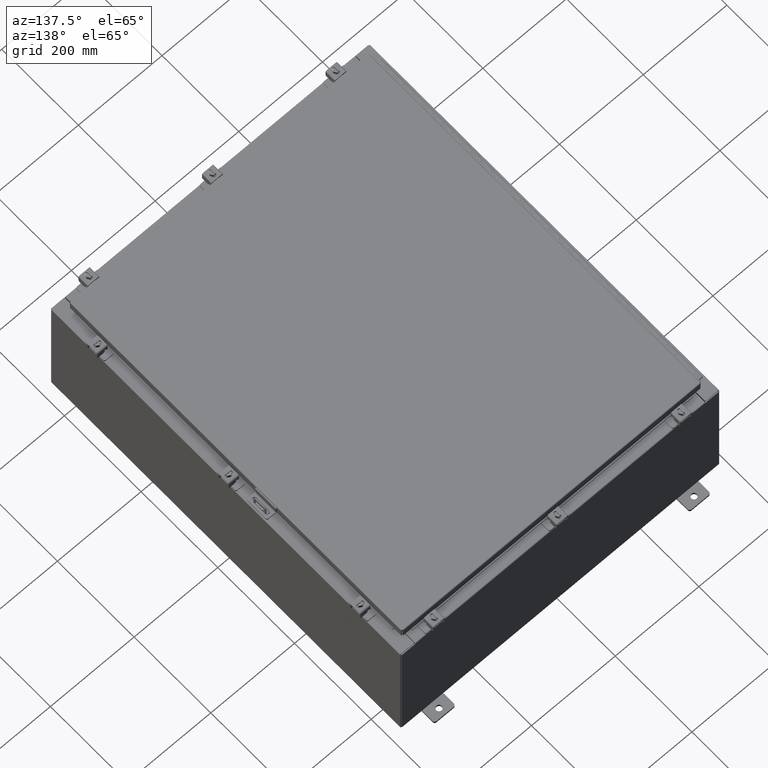
[diagram: clean part render]
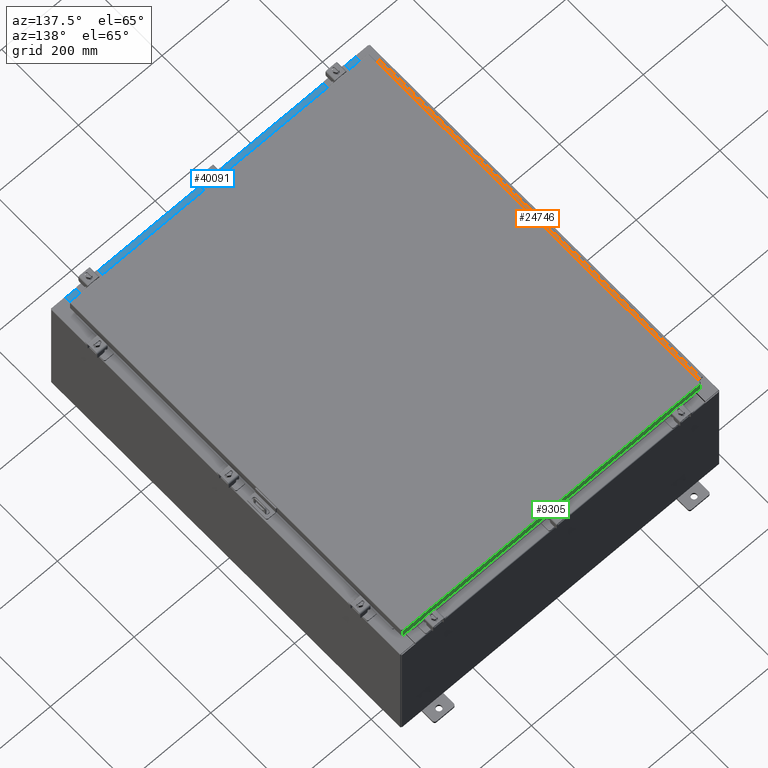
[diagram: same view with three faces highlighted in distinct colors, each labeled with its STEP entity id]
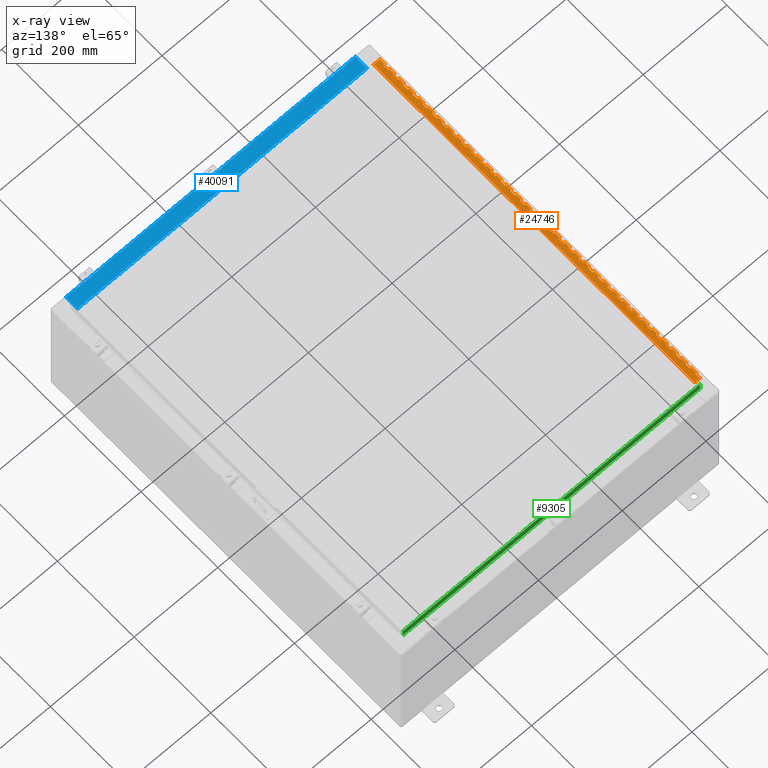
[diagram: x-ray of the same camera — body ghosted, the three highlighted faces saturated]
A machine part, auxiliary view with three faces highlighted in distinct colors.
The next image is the same camera in x-ray (body ghosted, the three faces saturated) — at least one of them is partly hidden behind the body in this view.
Their STEP definitions:

[orange] entity #24746 — the highlighted planar face has unit normal (-0, 0, 1).
#64 = CARTESIAN_POINT ( 'NONE',  ( -0.6870000000000096000, 0.8005000000000001000, -12.99999999999999800 ) ) ;
#87 = LINE ( 'NONE', #1966, #6977 ) ;
#123 = DIRECTION ( 'NONE',  ( -2.934562567422165700E-028, -8.758895779226624200E-031, 1.000000000000000000 ) ) ;
#131 = LINE ( 'NONE', #36316, #17062 ) ;
#141 = LINE ( 'NONE', #43432, #17074 ) ;
#181 = DIRECTION ( 'NONE',  ( -2.934562567422165700E-028, -8.758895779226624200E-031, 1.000000000000000000 ) ) ;
#229 = CARTESIAN_POINT ( 'NONE',  ( -0.6870000000000118200, 0.6755000000000116500, -33.00000000000000000 ) ) ;
#270 = CARTESIAN_POINT ( 'NONE',  ( -0.6869999999999987200, 0.5504999999999989900, -13.50000000000000000 ) ) ;
#349 = VECTOR ( 'NONE', #5827, 39.37007874015748100 ) ;
#396 = ORIENTED_EDGE ( 'NONE', *, *, #7882, .F. ) ;
#414 = VECTOR ( 'NONE', #19400, 39.37007874015748100 ) ;
#426 = VECTOR ( 'NONE', #37962, 39.37007874015748100 ) ;
#457 = ORIENTED_EDGE ( 'NONE', *, *, #9411, .T. ) ;
#463 = ORIENTED_EDGE ( 'NONE', *, *, #17262, .T. ) ;
#513 = CARTESIAN_POINT ( 'NONE',  ( -0.6869999999999987200, 0.5505000000000120900, -19.50000000000000000 ) ) ;
#576 = VERTEX_POINT ( 'NONE', #11910 ) ;
#651 = DIRECTION ( 'NONE',  ( 2.934562567422165700E-028, 8.758895779226624200E-031, -1.000000000000000000 ) ) ;
#678 = VECTOR ( 'NONE', #17058, 39.37007874015748100 ) ;
#705 = LINE ( 'NONE', #15325, #8647 ) ;
#834 = VECTOR ( 'NONE', #39436, 39.37007874015748100 ) ;
#900 = CARTESIAN_POINT ( 'NONE',  ( -0.6870000000000052700, 0.6755000000000007700, -28.99999999999999600 ) ) ;
#1011 = VERTEX_POINT ( 'NONE', #24506 ) ;
#1022 = EDGE_CURVE ( 'NONE', #39371, #18507, #18565, .T. ) ;
#1043 = CARTESIAN_POINT ( 'NONE',  ( -0.6869999999999987200, 0.5505000000000011000, -3.000000000000001800 ) ) ;
#1051 = EDGE_CURVE ( 'NONE', #2499, #24032, #8503, .T. ) ;
#1072 = LINE ( 'NONE', #39065, #35909 ) ;
#1123 = ORIENTED_EDGE ( 'NONE', *, *, #25807, .F. ) ;
#1124 = VERTEX_POINT ( 'NONE', #18200 ) ;
#1145 = CARTESIAN_POINT ( 'NONE',  ( -0.6870000000000096000, 0.8005000000000023200, -17.00000000000000000 ) ) ;
#1196 = VERTEX_POINT ( 'NONE', #28747 ) ;
#1269 = LINE ( 'NONE', #27513, #36109 ) ;
#1295 = VECTOR ( 'NONE', #21307, 39.37007874015748100 ) ;
#1363 = CARTESIAN_POINT ( 'NONE',  ( -0.6870000000000030500, 0.8005000000000001000, -1.000000000000003600 ) ) ;
#1377 = EDGE_CURVE ( 'NONE', #7559, #12632, #42789, .T. ) ;
#1412 = VERTEX_POINT ( 'NONE', #6525 ) ;
#1448 = LINE ( 'NONE', #4036, #36285 ) ;
#1519 = CARTESIAN_POINT ( 'NONE',  ( -0.6870000000000096000, 0.6755000000000007700, -22.00000000000000000 ) ) ;
#1566 = EDGE_CURVE ( 'NONE', #23054, #33854, #34289, .T. ) ;
#1580 = EDGE_CURVE ( 'NONE', #8228, #7237, #26402, .T. ) ;
#1682 = ORIENTED_EDGE ( 'NONE', *, *, #39678, .F. ) ;
#1714 = CARTESIAN_POINT ( 'NONE',  ( -0.6870000000000118200, 0.5505000000000011000, -8.500000000000000000 ) ) ;
#1726 = DIRECTION ( 'NONE',  ( -3.389037039080715600E-015, -1.000000000000000000, 6.055297756812885200E-031 ) ) ;
#1758 = LINE ( 'NONE', #27215, #678 ) ;
#1881 = CARTESIAN_POINT ( 'NONE',  ( -0.6870000000000118200, 0.5504999999999989900, -21.50000000000000400 ) ) ;
#1899 = ORIENTED_EDGE ( 'NONE', *, *, #24677, .T. ) ;
#1945 = CARTESIAN_POINT ( 'NONE',  ( -0.6870000000000118200, 0.6755000000000007700, -14.00000000000000000 ) ) ;
#1966 = CARTESIAN_POINT ( 'NONE',  ( -0.6870000000000118200, 0.5505000000000011000, -2.500000000000000000 ) ) ;
#1990 = VERTEX_POINT ( 'NONE', #25683 ) ;
#2000 = CARTESIAN_POINT ( 'NONE',  ( -0.6869999999999987200, 0.6755000000000007700, -21.50000000000000400 ) ) ;
#2064 = VECTOR ( 'NONE', #15380, 39.37007874015748100 ) ;
#2154 = CARTESIAN_POINT ( 'NONE',  ( -0.6870000000000161500, -0.6245000000000025000, 0.0000000000000000000 ) ) ;
#2280 = VERTEX_POINT ( 'NONE', #3829 ) ;
#2292 = CARTESIAN_POINT ( 'NONE',  ( -0.6870000000000096000, 0.6755000000000007700, -14.99999999999999800 ) ) ;
#2325 = CARTESIAN_POINT ( 'NONE',  ( -0.6869999999999987200, 0.6755000000000116500, -11.99999999999999800 ) ) ;
#2376 = ORIENTED_EDGE ( 'NONE', *, *, #27830, .T. ) ;
#2383 = VECTOR ( 'NONE', #3265, 39.37007874015748100 ) ;
#2393 = CARTESIAN_POINT ( 'NONE',  ( -0.6870000000000118200, 0.5504999999999989900, -27.50000000000000700 ) ) ;
#2420 = ORIENTED_EDGE ( 'NONE', *, *, #18404, .F. ) ;
#2473 = LINE ( 'NONE', #16839, #37267 ) ;
#2499 = VERTEX_POINT ( 'NONE', #35792 ) ;
#2541 = EDGE_CURVE ( 'NONE', #2280, #2893, #27392, .T. ) ;
#2576 = DIRECTION ( 'NONE',  ( -2.934562567422165700E-028, -8.758895779226624200E-031, 1.000000000000000000 ) ) ;
#2584 = CARTESIAN_POINT ( 'NONE',  ( -0.6869999999999987200, 0.5505000000000011000, -16.00000000000000000 ) ) ;
#2613 = CARTESIAN_POINT ( 'NONE',  ( -0.6869999999999987200, 0.8005000000000001000, -6.499999999999999100 ) ) ;
#2680 = DIRECTION ( 'NONE',  ( -3.389037039080715600E-015, -1.000000000000000000, 6.055297756812885200E-031 ) ) ;
#2699 = DIRECTION ( 'NONE',  ( -3.389037039080715600E-015, -1.000000000000000000, 6.055297756812885200E-031 ) ) ;
#2710 = CARTESIAN_POINT ( 'NONE',  ( -0.6870000000000118200, 0.6755000000000116500, -33.00000000000000000 ) ) ;
#2769 = DIRECTION ( 'NONE',  ( 3.389037039080715600E-015, 1.000000000000000000, -6.055297756812885200E-031 ) ) ;
#2807 = EDGE_CURVE ( 'NONE', #4329, #43779, #42664, .T. ) ;
#2886 = VERTEX_POINT ( 'NONE', #30655 ) ;
#2893 = VERTEX_POINT ( 'NONE', #30801 ) ;
#2963 = CARTESIAN_POINT ( 'NONE',  ( -0.6870000000000118200, 0.5504999999999989900, -7.000000000000002700 ) ) ;
#2989 = VECTOR ( 'NONE', #2576, 39.37007874015748100 ) ;
#3025 = LINE ( 'NONE', #25768, #10921 ) ;
#3077 = CARTESIAN_POINT ( 'NONE',  ( -0.6870000000000118200, 0.6755000000000116500, -33.00000000000000000 ) ) ;
#3097 = ORIENTED_EDGE ( 'NONE', *, *, #41819, .F. ) ;
#3190 = VECTOR ( 'NONE', #21142, 39.37007874015748100 ) ;
#3265 = DIRECTION ( 'NONE',  ( -3.389037039080715600E-015, -1.000000000000000000, 6.055297756812885200E-031 ) ) ;
#3275 = VERTEX_POINT ( 'NONE', #19645 ) ;
#3306 = CARTESIAN_POINT ( 'NONE',  ( -0.6870000000000096000, 0.6755000000000007700, -30.50000000000000700 ) ) ;
#3315 = VERTEX_POINT ( 'NONE', #43355 ) ;
#3328 = CARTESIAN_POINT ( 'NONE',  ( -0.6870000000000030500, 0.6755000000000007700, -13.50000000000000000 ) ) ;
#3379 = CARTESIAN_POINT ( 'NONE',  ( -0.6869999999999987200, 0.8005000000000044300, -24.50000000000000400 ) ) ;
#3476 = EDGE_CURVE ( 'NONE', #1412, #7150, #31359, .T. ) ;
#3575 = VECTOR ( 'NONE', #21505, 39.37007874015748100 ) ;
#3612 = LINE ( 'NONE', #17212, #20508 ) ;
#3613 = EDGE_CURVE ( 'NONE', #14045, #23695, #16150, .T. ) ;
#3637 = LINE ( 'NONE', #5215, #10485 ) ;
#3786 = LINE ( 'NONE', #12892, #38601 ) ;
#3791 = VECTOR ( 'NONE', #18127, 39.37007874015748100 ) ;
#3829 = CARTESIAN_POINT ( 'NONE',  ( -0.6870000000000118200, 0.5505000000000011000, -22.50000000000000400 ) ) ;
#3830 = VECTOR ( 'NONE', #33903, 39.37007874015748100 ) ;
#3857 = CARTESIAN_POINT ( 'NONE',  ( -0.6870000000000096000, 0.6755000000000116500, -19.50000000000000000 ) ) ;
#3995 = CARTESIAN_POINT ( 'NONE',  ( -0.6870000000000118200, 0.5505000000000120900, -5.000000000000000000 ) ) ;
#4036 = CARTESIAN_POINT ( 'NONE',  ( -0.6870000000000118200, 0.07550000000000552100, -33.00000000000000000 ) ) ;
#4040 = CARTESIAN_POINT ( 'NONE',  ( -0.6869999999999987200, 0.8005000000000132000, -12.49999999999999800 ) ) ;
#4049 = LINE ( 'NONE', #31348, #38870 ) ;
#4053 = EDGE_CURVE ( 'NONE', #35175, #21893, #1269, .T. ) ;
#4106 = EDGE_CURVE ( 'NONE', #12972, #3315, #33981, .T. ) ;
#4150 = CARTESIAN_POINT ( 'NONE',  ( -0.6870000000000118200, 0.5505000000000120900, -11.99999999999999800 ) ) ;
#4170 = CARTESIAN_POINT ( 'NONE',  ( -0.6869999999999987200, 0.5505000000000120900, -27.00000000000000000 ) ) ;
#4211 = LINE ( 'NONE', #6770, #13204 ) ;
#4280 = ORIENTED_EDGE ( 'NONE', *, *, #23636, .F. ) ;
#4290 = CARTESIAN_POINT ( 'NONE',  ( -0.6870000000000118200, 0.6755000000000007700, -29.50000000000000400 ) ) ;
#4311 = VERTEX_POINT ( 'NONE', #5406 ) ;
#4329 = VERTEX_POINT ( 'NONE', #2000 ) ;
#4549 = LINE ( 'NONE', #29570, #39341 ) ;
#4578 = VERTEX_POINT ( 'NONE', #33803 ) ;
#4580 = DIRECTION ( 'NONE',  ( 3.389037039080715600E-015, 1.000000000000000000, -6.055297756812885200E-031 ) ) ;
#4609 = CARTESIAN_POINT ( 'NONE',  ( -0.6870000000000118200, 0.6755000000000116500, -33.00000000000000000 ) ) ;
#4618 = ORIENTED_EDGE ( 'NONE', *, *, #2807, .T. ) ;
#4632 = DIRECTION ( 'NONE',  ( -2.934562567422165700E-028, -8.758895779226624200E-031, 1.000000000000000000 ) ) ;
#4659 = DIRECTION ( 'NONE',  ( -2.934562567422165700E-028, -8.758895779226624200E-031, 1.000000000000000000 ) ) ;
#4703 = ORIENTED_EDGE ( 'NONE', *, *, #22448, .T. ) ;
#4713 = VECTOR ( 'NONE', #42542, 39.37007874015748100 ) ;
#4748 = ORIENTED_EDGE ( 'NONE', *, *, #25551, .F. ) ;
#4750 = DIRECTION ( 'NONE',  ( -2.934562567422165700E-028, -8.758895779226624200E-031, 1.000000000000000000 ) ) ;
#4798 = LINE ( 'NONE', #2154, #40071 ) ;
#4799 = DIRECTION ( 'NONE',  ( -3.389037039080715600E-015, -1.000000000000000000, 6.055297756812885200E-031 ) ) ;
#4891 = ORIENTED_EDGE ( 'NONE', *, *, #33458, .T. ) ;
#4905 = VECTOR ( 'NONE', #30791, 39.37007874015748100 ) ;
#4958 = VERTEX_POINT ( 'NONE', #39087 ) ;
#4982 = EDGE_CURVE ( 'NONE', #35854, #36874, #38126, .T. ) ;
#5096 = EDGE_CURVE ( 'NONE', #34408, #43779, #9132, .T. ) ;
#5133 = ORIENTED_EDGE ( 'NONE', *, *, #34485, .F. ) ;
#5215 = CARTESIAN_POINT ( 'NONE',  ( -0.6870000000000096000, 0.8005000000000023200, -31.00000000000000400 ) ) ;
#5241 = EDGE_CURVE ( 'NONE', #25221, #40454, #5974, .T. ) ;
#5379 = DIRECTION ( 'NONE',  ( 3.389037039080715600E-015, 1.000000000000000000, -6.055297756812885200E-031 ) ) ;
#5406 = CARTESIAN_POINT ( 'NONE',  ( -0.6870000000000096000, 0.5505000000000011000, -1.999999999999998400 ) ) ;
#5470 = CARTESIAN_POINT ( 'NONE',  ( -0.6869999999999987200, 0.6755000000000007700, -2.500000000000000000 ) ) ;
#5472 = LINE ( 'NONE', #41444, #40279 ) ;
#5617 = LINE ( 'NONE', #23787, #24569 ) ;
#5649 = VERTEX_POINT ( 'NONE', #20257 ) ;
#5724 = ORIENTED_EDGE ( 'NONE', *, *, #17929, .F. ) ;
#5765 = VERTEX_POINT ( 'NONE', #7381 ) ;
#5766 = CARTESIAN_POINT ( 'NONE',  ( -0.6870000000000118200, 0.5505000000000011000, -30.00000000000000000 ) ) ;
#5771 = LINE ( 'NONE', #2613, #40559 ) ;
#5797 = ORIENTED_EDGE ( 'NONE', *, *, #38295, .T. ) ;
#5826 = ORIENTED_EDGE ( 'NONE', *, *, #12466, .F. ) ;
#5827 = DIRECTION ( 'NONE',  ( 3.389037039080715600E-015, 1.000000000000000000, -6.055297756812885200E-031 ) ) ;
#5960 = CARTESIAN_POINT ( 'NONE',  ( -0.6869999999999987200, 0.5505000000000011000, -9.000000000000001800 ) ) ;
#5974 = LINE ( 'NONE', #13740, #3830 ) ;
#5985 = DIRECTION ( 'NONE',  ( -3.389037039080715600E-015, -1.000000000000000000, 6.055297756812885200E-031 ) ) ;
#6010 = LINE ( 'NONE', #21607, #32868 ) ;
#6084 = ORIENTED_EDGE ( 'NONE', *, *, #3613, .F. ) ;
#6189 = CARTESIAN_POINT ( 'NONE',  ( -0.6870000000000009400, 0.6755000000000051000, -11.00000000000000000 ) ) ;
#6252 = CARTESIAN_POINT ( 'NONE',  ( -0.6870000000000118200, 0.5505000000000011000, -9.500000000000003600 ) ) ;
#6442 = VERTEX_POINT ( 'NONE', #37971 ) ;
#6492 = LINE ( 'NONE', #36655, #21248 ) ;
#6525 = CARTESIAN_POINT ( 'NONE',  ( -0.6870000000000118200, 0.5505000000000120900, -19.00000000000000000 ) ) ;
#6568 = VECTOR ( 'NONE', #33262, 39.37007874015748100 ) ;
#6635 = VERTEX_POINT ( 'NONE', #25440 ) ;
#6763 = VERTEX_POINT ( 'NONE', #22956 ) ;
#6770 = CARTESIAN_POINT ( 'NONE',  ( -0.6870000000000118200, 0.6755000000000116500, -33.00000000000000000 ) ) ;
#6796 = CARTESIAN_POINT ( 'NONE',  ( -0.6870000000000118200, 0.5505000000000011000, -23.99999999999999600 ) ) ;
#6818 = CARTESIAN_POINT ( 'NONE',  ( -0.6869999999999987200, 0.5504999999999989900, -0.5000000000000017800 ) ) ;
#6823 = VERTEX_POINT ( 'NONE', #29957 ) ;
#6904 = ORIENTED_EDGE ( 'NONE', *, *, #31056, .F. ) ;
#6914 = EDGE_CURVE ( 'NONE', #21173, #42229, #1758, .T. ) ;
#6916 = DIRECTION ( 'NONE',  ( -3.389037039080715600E-015, -1.000000000000000000, 6.055297756812885200E-031 ) ) ;
#6921 = VECTOR ( 'NONE', #16425, 39.37007874015748100 ) ;
#6967 = CARTESIAN_POINT ( 'NONE',  ( -0.6870000000000096000, 0.8005000000000001000, -30.00000000000000000 ) ) ;
#6977 = VECTOR ( 'NONE', #28906, 39.37007874015748100 ) ;
#6980 = EDGE_CURVE ( 'NONE', #17989, #7817, #32312, .T. ) ;
#7016 = EDGE_CURVE ( 'NONE', #6442, #4311, #23405, .T. ) ;
#7150 = VERTEX_POINT ( 'NONE', #43425 ) ;
#7237 = VERTEX_POINT ( 'NONE', #33796 ) ;
#7263 = CARTESIAN_POINT ( 'NONE',  ( -0.6870000000000096000, 0.8005000000000001000, -23.00000000000000400 ) ) ;
#7301 = DIRECTION ( 'NONE',  ( -2.934562567422165700E-028, -8.758895779226624200E-031, 1.000000000000000000 ) ) ;
#7348 = VERTEX_POINT ( 'NONE', #4170 ) ;
#7381 = CARTESIAN_POINT ( 'NONE',  ( -0.6869999999999987200, 0.6755000000000007700, -17.00000000000000000 ) ) ;
#7382 = LINE ( 'NONE', #3077, #41133 ) ;
#7408 = VECTOR ( 'NONE', #43723, 39.37007874015748100 ) ;
#7423 = LINE ( 'NONE', #6818, #33248 ) ;
#7431 = EDGE_CURVE ( 'NONE', #22013, #35997, #36534, .T. ) ;
#7512 = CARTESIAN_POINT ( 'NONE',  ( -0.6869999999999987200, 0.5505000000000011000, -31.50000000000000400 ) ) ;
#7514 = VECTOR ( 'NONE', #34857, 39.37007874015748100 ) ;
#7519 = VERTEX_POINT ( 'NONE', #19243 ) ;
#7533 = ORIENTED_EDGE ( 'NONE', *, *, #29968, .F. ) ;
#7559 = VERTEX_POINT ( 'NONE', #5960 ) ;
#7567 = DIRECTION ( 'NONE',  ( -2.934562567422165700E-028, -8.758895779226624200E-031, 1.000000000000000000 ) ) ;
#7603 = VERTEX_POINT ( 'NONE', #26414 ) ;
#7628 = CARTESIAN_POINT ( 'NONE',  ( -0.6870000000000118200, 0.6755000000000116500, -33.00000000000000000 ) ) ;
#7659 = DIRECTION ( 'NONE',  ( -3.389037039080715600E-015, -1.000000000000000000, 6.055297756812885200E-031 ) ) ;
#7761 = ORIENTED_EDGE ( 'NONE', *, *, #32275, .F. ) ;
#7796 = LINE ( 'NONE', #18282, #33648 ) ;
#7817 = VERTEX_POINT ( 'NONE', #30917 ) ;
#7831 = VECTOR ( 'NONE', #13637, 39.37007874015748100 ) ;
#7882 = EDGE_CURVE ( 'NONE', #28180, #41825, #19654, .T. ) ;
#7981 = CARTESIAN_POINT ( 'NONE',  ( -0.6870000000000096000, 0.8005000000000001000, -28.99999999999999600 ) ) ;
#7982 = CARTESIAN_POINT ( 'NONE',  ( -0.6869999999999987200, 0.8005000000000001000, -14.00000000000000000 ) ) ;
#8034 = VERTEX_POINT ( 'NONE', #8535 ) ;
#8148 = ORIENTED_EDGE ( 'NONE', *, *, #8744, .F. ) ;
#8160 = DIRECTION ( 'NONE',  ( 3.389037039080715600E-015, 1.000000000000000000, -6.055297756812885200E-031 ) ) ;
#8228 = VERTEX_POINT ( 'NONE', #29724 ) ;
#8240 = LINE ( 'NONE', #42228, #25123 ) ;
#8288 = LINE ( 'NONE', #27839, #42057 ) ;
#8298 = DIRECTION ( 'NONE',  ( 2.934562567422165700E-028, 8.758895779226624200E-031, -1.000000000000000000 ) ) ;
#8359 = VECTOR ( 'NONE', #123, 39.37007874015748100 ) ;
#8361 = CARTESIAN_POINT ( 'NONE',  ( -0.6869999999999987200, 0.8005000000000044300, -17.50000000000000000 ) ) ;
#8366 = VERTEX_POINT ( 'NONE', #23844 ) ;
#8412 = EDGE_CURVE ( 'NONE', #1124, #12298, #16445, .T. ) ;
#8442 = CARTESIAN_POINT ( 'NONE',  ( -0.6870000000000118200, 0.07550000000000552100, -33.00000000000000000 ) ) ;
#8452 = CARTESIAN_POINT ( 'NONE',  ( -0.6870000000000009400, 0.07549999999999895700, 0.0000000000000000000 ) ) ;
#8453 = ORIENTED_EDGE ( 'NONE', *, *, #34999, .F. ) ;
#8496 = DIRECTION ( 'NONE',  ( 2.934562567422165700E-028, 8.758895779226624200E-031, -1.000000000000000000 ) ) ;
#8501 = DIRECTION ( 'NONE',  ( 2.934562567422165700E-028, 8.758895779226624200E-031, -1.000000000000000000 ) ) ;
#8503 = LINE ( 'NONE', #14667, #28523 ) ;
#8535 = CARTESIAN_POINT ( 'NONE',  ( -0.6869999999999987200, 0.6755000000000116500, -26.50000000000000400 ) ) ;
#8549 = ORIENTED_EDGE ( 'NONE', *, *, #29328, .T. ) ;
#8565 = VECTOR ( 'NONE', #7301, 39.37007874015748100 ) ;
#8572 = VECTOR ( 'NONE', #31526, 39.37007874015748100 ) ;
#8647 = VECTOR ( 'NONE', #22083, 39.37007874015748100 ) ;
#8693 = LINE ( 'NONE', #13423, #23471 ) ;
#8736 = CARTESIAN_POINT ( 'NONE',  ( -0.6870000000000030500, 0.5505000000000011000, -23.50000000000000000 ) ) ;
#8744 = EDGE_CURVE ( 'NONE', #16203, #17099, #41688, .T. ) ;
#8773 = EDGE_CURVE ( 'NONE', #2886, #11914, #21666, .T. ) ;
#8886 = EDGE_CURVE ( 'NONE', #43707, #23794, #43284, .T. ) ;
#8938 = VECTOR ( 'NONE', #15653, 39.37007874015748100 ) ;
#8963 = DIRECTION ( 'NONE',  ( 3.389037039080715600E-015, 1.000000000000000000, -6.055297756812885200E-031 ) ) ;
#8977 = LINE ( 'NONE', #27894, #3190 ) ;
#9094 = EDGE_CURVE ( 'NONE', #10177, #4578, #35853, .T. ) ;
#9099 = ORIENTED_EDGE ( 'NONE', *, *, #29874, .F. ) ;
#9108 = VECTOR ( 'NONE', #30404, 39.37007874015748100 ) ;
#9110 = VERTEX_POINT ( 'NONE', #19356 ) ;
#9119 = VERTEX_POINT ( 'NONE', #39514 ) ;
#9132 = LINE ( 'NONE', #36575, #17072 ) ;
#9160 = ORIENTED_EDGE ( 'NONE', *, *, #13523, .F. ) ;
#9232 = VERTEX_POINT ( 'NONE', #29708 ) ;
#9236 = CARTESIAN_POINT ( 'NONE',  ( -0.6870000000000118200, 0.6755000000000007700, -16.50000000000000000 ) ) ;
#9314 = CARTESIAN_POINT ( 'NONE',  ( -0.6870000000000096000, 0.8005000000000001000, -20.50000000000000400 ) ) ;
#9329 = ORIENTED_EDGE ( 'NONE', *, *, #10614, .F. ) ;
#9363 = LINE ( 'NONE', #8361, #17302 ) ;
#9411 = EDGE_CURVE ( 'NONE', #40110, #8366, #42158, .T. ) ;
#9575 = VECTOR ( 'NONE', #31255, 39.37007874015748100 ) ;
#9595 = VECTOR ( 'NONE', #38018, 39.37007874015748100 ) ;
#9597 = VERTEX_POINT ( 'NONE', #42415 ) ;
#9699 = VERTEX_POINT ( 'NONE', #12504 ) ;
#9710 = EDGE_CURVE ( 'NONE', #9119, #21173, #5771, .T. ) ;
#9767 = CARTESIAN_POINT ( 'NONE',  ( -0.6870000000000030500, 0.8005000000000001000, -22.50000000000000400 ) ) ;
#9785 = LINE ( 'NONE', #7982, #26673 ) ;
#9793 = CARTESIAN_POINT ( 'NONE',  ( -0.6869999999999987200, 0.6754999999999985500, -12.99999999999999800 ) ) ;
#9807 = EDGE_CURVE ( 'NONE', #6823, #15428, #3637, .T. ) ;
#9837 = LINE ( 'NONE', #36049, #834 ) ;
#9910 = LINE ( 'NONE', #12591, #26807 ) ;
#10101 = EDGE_CURVE ( 'NONE', #41273, #13222, #7423, .T. ) ;
#10163 = ORIENTED_EDGE ( 'NONE', *, *, #10691, .T. ) ;
#10177 = VERTEX_POINT ( 'NONE', #23755 ) ;
#10179 = ORIENTED_EDGE ( 'NONE', *, *, #14517, .T. ) ;
#10217 = CARTESIAN_POINT ( 'NONE',  ( -0.6869999999999987200, 0.6755000000000007700, -15.50000000000000000 ) ) ;
#10231 = CARTESIAN_POINT ( 'NONE',  ( -0.6870000000000118200, 0.6755000000000116500, -33.00000000000000000 ) ) ;
#10293 = VERTEX_POINT ( 'NONE', #7512 ) ;
#10310 = VECTOR ( 'NONE', #8501, 39.37007874015748100 ) ;
#10311 = DIRECTION ( 'NONE',  ( 3.369016658928389100E-015, 1.000000000000000000, -8.885967774000893800E-031 ) ) ;
#10359 = LINE ( 'NONE', #15085, #35114 ) ;
#10399 = VECTOR ( 'NONE', #2680, 39.37007874015748100 ) ;
#10469 = ORIENTED_EDGE ( 'NONE', *, *, #32402, .F. ) ;
#10485 = VECTOR ( 'NONE', #38679, 39.37007874015748100 ) ;
#10501 = LINE ( 'NONE', #26169, #19507 ) ;
#10568 = ORIENTED_EDGE ( 'NONE', *, *, #37745, .F. ) ;
#10614 = EDGE_CURVE ( 'NONE', #7817, #14404, #25309, .T. ) ;
#10624 = EDGE_CURVE ( 'NONE', #27815, #34695, #7382, .T. ) ;
#10666 = ORIENTED_EDGE ( 'NONE', *, *, #30713, .F. ) ;
#10691 = EDGE_CURVE ( 'NONE', #18205, #7150, #4211, .T. ) ;
#10704 = VERTEX_POINT ( 'NONE', #33703 ) ;
#10874 = VECTOR ( 'NONE', #2769, 39.37007874015748100 ) ;
#10896 = CARTESIAN_POINT ( 'NONE',  ( -0.6869999999999987200, 0.6755000000000007700, -30.00000000000000000 ) ) ;
#10898 = EDGE_CURVE ( 'NONE', #42229, #40454, #21612, .T. ) ;
#10921 = VECTOR ( 'NONE', #8963, 39.37007874015748100 ) ;
#10930 = DIRECTION ( 'NONE',  ( 3.389037039080715600E-015, 1.000000000000000000, -6.055297756812885200E-031 ) ) ;
#10966 = LINE ( 'NONE', #16413, #19972 ) ;
#10998 = ORIENTED_EDGE ( 'NONE', *, *, #42055, .F. ) ;
#11059 = CARTESIAN_POINT ( 'NONE',  ( -0.6869999999999987200, 0.5505000000000011000, -24.50000000000000400 ) ) ;
#11069 = CARTESIAN_POINT ( 'NONE',  ( -0.6870000000000052700, 0.5505000000000120900, -5.499999999999997300 ) ) ;
#11077 = LINE ( 'NONE', #36973, #35859 ) ;
#11227 = ORIENTED_EDGE ( 'NONE', *, *, #29714, .F. ) ;
#11229 = VERTEX_POINT ( 'NONE', #6189 ) ;
#11244 = LINE ( 'NONE', #9767, #18108 ) ;
#11454 = ORIENTED_EDGE ( 'NONE', *, *, #36816, .F. ) ;
#11492 = EDGE_CURVE ( 'NONE', #29316, #34686, #27366, .T. ) ;
#11623 = DIRECTION ( 'NONE',  ( -3.389037039080715600E-015, -1.000000000000000000, 6.055297756812885200E-031 ) ) ;
#11631 = LINE ( 'NONE', #2710, #37450 ) ;
#11777 = VERTEX_POINT ( 'NONE', #2292 ) ;
#11797 = ORIENTED_EDGE ( 'NONE', *, *, #30298, .F. ) ;
#11876 = CARTESIAN_POINT ( 'NONE',  ( -0.6870000000000096000, 0.8005000000000001000, -15.50000000000000000 ) ) ;
#11899 = VERTEX_POINT ( 'NONE', #23232 ) ;
#11910 = CARTESIAN_POINT ( 'NONE',  ( -0.6869999999999987200, 0.5505000000000011000, -22.00000000000000000 ) ) ;
#11914 = VERTEX_POINT ( 'NONE', #16621 ) ;
#11972 = DIRECTION ( 'NONE',  ( 3.389037039080715600E-015, 1.000000000000000000, -6.055297756812885200E-031 ) ) ;
#11978 = CARTESIAN_POINT ( 'NONE',  ( -0.6869999999999987200, 0.6755000000000116500, -5.000000000000000000 ) ) ;
#11987 = LINE ( 'NONE', #1145, #19913 ) ;
#11993 = CARTESIAN_POINT ( 'NONE',  ( -0.6870000000000118200, 0.6755000000000007700, -23.50000000000000000 ) ) ;
#12075 = ORIENTED_EDGE ( 'NONE', *, *, #37293, .F. ) ;
#12169 = DIRECTION ( 'NONE',  ( 2.934562567422165700E-028, 8.758895779226624200E-031, -1.000000000000000000 ) ) ;
#12197 = DIRECTION ( 'NONE',  ( 3.369016658928389900E-015, 1.000000000000000000, -8.885967774000893800E-031 ) ) ;
#12296 = CARTESIAN_POINT ( 'NONE',  ( -0.6869999999999987200, 0.6754999999999985500, -6.000000000000001800 ) ) ;
#12298 = VERTEX_POINT ( 'NONE', #31972 ) ;
#12306 = CARTESIAN_POINT ( 'NONE',  ( -0.6869999999999987200, 0.5505000000000011000, -17.00000000000000000 ) ) ;
#12428 = ORIENTED_EDGE ( 'NONE', *, *, #39630, .F. ) ;
#12466 = EDGE_CURVE ( 'NONE', #39371, #36198, #29351, .T. ) ;
#12496 = VECTOR ( 'NONE', #34776, 39.37007874015748100 ) ;
#12504 = CARTESIAN_POINT ( 'NONE',  ( -0.6870000000000030500, 0.5505000000000120900, -11.50000000000000000 ) ) ;
#12569 = CARTESIAN_POINT ( 'NONE',  ( -0.6870000000000009400, 0.5504999999999989900, -21.00000000000000000 ) ) ;
#12591 = CARTESIAN_POINT ( 'NONE',  ( -0.6870000000000140400, -0.6245000000000002800, -33.00000000000000000 ) ) ;
#12594 = VERTEX_POINT ( 'NONE', #13797 ) ;
#12628 = CARTESIAN_POINT ( 'NONE',  ( -0.6869999999999987200, 0.5505000000000011000, -1.500000000000000900 ) ) ;
#12632 = VERTEX_POINT ( 'NONE', #17338 ) ;
#12677 = EDGE_CURVE ( 'NONE', #14396, #27959, #1448, .T. ) ;
#12718 = EDGE_CURVE ( 'NONE', #17615, #5765, #19452, .T. ) ;
#12822 = VERTEX_POINT ( 'NONE', #21580 ) ;
#12826 = VECTOR ( 'NONE', #27451, 39.37007874015748100 ) ;
#12892 = CARTESIAN_POINT ( 'NONE',  ( -0.6869999999999987200, 0.8005000000000132000, -4.500000000000002700 ) ) ;
#12907 = LINE ( 'NONE', #11876, #29718 ) ;
#12972 = VERTEX_POINT ( 'NONE', #32436 ) ;
#13013 = DIRECTION ( 'NONE',  ( 3.389037039080715600E-015, 1.000000000000000000, -6.055297756812885200E-031 ) ) ;
#13032 = CARTESIAN_POINT ( 'NONE',  ( -0.6869999999999987200, 0.5505000000000011000, -24.50000000000000400 ) ) ;
#13080 = CARTESIAN_POINT ( 'NONE',  ( -0.6870000000000096000, 0.8005000000000066500, -11.00000000000000000 ) ) ;
#13120 = DIRECTION ( 'NONE',  ( -2.934562567422165700E-028, -8.758895779226624200E-031, 1.000000000000000000 ) ) ;
#13137 = VERTEX_POINT ( 'NONE', #16725 ) ;
#13177 = DIRECTION ( 'NONE',  ( -3.389037039080715600E-015, -1.000000000000000000, 6.055297756812885200E-031 ) ) ;
#13204 = VECTOR ( 'NONE', #13556, 39.37007874015748100 ) ;
#13222 = VERTEX_POINT ( 'NONE', #37433 ) ;
#13272 = ORIENTED_EDGE ( 'NONE', *, *, #39479, .F. ) ;
#13337 = VECTOR ( 'NONE', #42048, 39.37007874015748100 ) ;
#13362 = EDGE_CURVE ( 'NONE', #40110, #24950, #4049, .T. ) ;
#13369 = EDGE_CURVE ( 'NONE', #20421, #5765, #11987, .T. ) ;
#13415 = DIRECTION ( 'NONE',  ( -2.934562567422165700E-028, -8.758895779226624200E-031, 1.000000000000000000 ) ) ;
#13423 = CARTESIAN_POINT ( 'NONE',  ( -0.6870000000000118200, 0.5504999999999989900, -20.50000000000000400 ) ) ;
#13487 = VERTEX_POINT ( 'NONE', #32083 ) ;
#13523 = EDGE_CURVE ( 'NONE', #36684, #9110, #16894, .T. ) ;
#13556 = DIRECTION ( 'NONE',  ( -2.934562567422165700E-028, -8.758895779226624200E-031, 1.000000000000000000 ) ) ;
#13560 = VERTEX_POINT ( 'NONE', #25784 ) ;
#13567 = DIRECTION ( 'NONE',  ( 2.934562567422165700E-028, 8.758895779226624200E-031, -1.000000000000000000 ) ) ;
#13620 = LINE ( 'NONE', #14737, #3575 ) ;
#13621 = DIRECTION ( 'NONE',  ( 3.389037039080715600E-015, 1.000000000000000000, -6.055297756812885200E-031 ) ) ;
#13637 = DIRECTION ( 'NONE',  ( -2.934562567422165700E-028, -8.758895779226624200E-031, 1.000000000000000000 ) ) ;
#13660 = VECTOR ( 'NONE', #30396, 39.37007874015748100 ) ;
#13704 = ORIENTED_EDGE ( 'NONE', *, *, #37945, .F. ) ;
#13740 = CARTESIAN_POINT ( 'NONE',  ( -0.6870000000000118200, 0.6755000000000116500, -33.00000000000000000 ) ) ;
#13797 = CARTESIAN_POINT ( 'NONE',  ( -0.6869999999999987200, 0.6755000000000029900, -23.99999999999999600 ) ) ;
#13939 = LINE ( 'NONE', #43492, #21849 ) ;
#13973 = CARTESIAN_POINT ( 'NONE',  ( -0.6869999999999987200, 0.6755000000000007700, -14.49999999999999800 ) ) ;
#14003 = EDGE_CURVE ( 'NONE', #9110, #11229, #16850, .T. ) ;
#14006 = LINE ( 'NONE', #270, #21916 ) ;
#14041 = VECTOR ( 'NONE', #24784, 39.37007874015748100 ) ;
#14045 = VERTEX_POINT ( 'NONE', #26783 ) ;
#14084 = EDGE_CURVE ( 'NONE', #11899, #41487, #15787, .T. ) ;
#14100 = ORIENTED_EDGE ( 'NONE', *, *, #39244, .T. ) ;
#14129 = CARTESIAN_POINT ( 'NONE',  ( -0.6869999999999987200, 0.5505000000000011000, -30.50000000000000700 ) ) ;
#14139 = EDGE_CURVE ( 'NONE', #23054, #3275, #3612, .T. ) ;
#14178 = DIRECTION ( 'NONE',  ( 3.389037039080715600E-015, 1.000000000000000000, -6.055297756812885200E-031 ) ) ;
#14212 = LINE ( 'NONE', #18473, #31031 ) ;
#14313 = VECTOR ( 'NONE', #18009, 39.37007874015748100 ) ;
#14396 = VERTEX_POINT ( 'NONE', #8442 ) ;
#14404 = VERTEX_POINT ( 'NONE', #42355 ) ;
#14413 = LINE ( 'NONE', #15118, #29132 ) ;
#14424 = CARTESIAN_POINT ( 'NONE',  ( -0.6869999999999987200, 0.8005000000000001000, -23.50000000000000000 ) ) ;
#14441 = VECTOR ( 'NONE', #37973, 39.37007874015748100 ) ;
#14446 = CARTESIAN_POINT ( 'NONE',  ( -0.6870000000000096000, 0.5505000000000011000, -8.000000000000001800 ) ) ;
#14501 = VECTOR ( 'NONE', #34891, 39.37007874015748100 ) ;
#14517 = EDGE_CURVE ( 'NONE', #14396, #12298, #9910, .T. ) ;
#14552 = DIRECTION ( 'NONE',  ( -2.934562567422165700E-028, -8.758895779226624200E-031, 1.000000000000000000 ) ) ;
#14667 = CARTESIAN_POINT ( 'NONE',  ( -0.6870000000000096000, 0.8005000000000001000, -27.50000000000000700 ) ) ;
#14677 = DIRECTION ( 'NONE',  ( -3.389037039080715600E-015, -1.000000000000000000, 6.055297756812885200E-031 ) ) ;
#14699 = CARTESIAN_POINT ( 'NONE',  ( -0.6870000000000118200, 0.6755000000000116500, -33.00000000000000000 ) ) ;
#14737 = CARTESIAN_POINT ( 'NONE',  ( -0.6870000000000096000, 0.8005000000000044300, -4.000000000000000900 ) ) ;
#14739 = CARTESIAN_POINT ( 'NONE',  ( -0.6869999999999987200, 0.5505000000000076500, -25.50000000000000700 ) ) ;
#14744 = ORIENTED_EDGE ( 'NONE', *, *, #18300, .F. ) ;
#14826 = CARTESIAN_POINT ( 'NONE',  ( -0.6869999999999987200, 0.6754999999999985500, -20.50000000000000400 ) ) ;
#14841 = EDGE_CURVE ( 'NONE', #32746, #24030, #8288, .T. ) ;
#15032 = VECTOR ( 'NONE', #22549, 39.37007874015748100 ) ;
#15079 = ORIENTED_EDGE ( 'NONE', *, *, #43737, .F. ) ;
#15085 = CARTESIAN_POINT ( 'NONE',  ( -0.6869999999999987200, 0.5505000000000011000, -31.50000000000000400 ) ) ;
#15090 = VERTEX_POINT ( 'NONE', #33002 ) ;
#15110 = LINE ( 'NONE', #7981, #14041 ) ;
#15118 = CARTESIAN_POINT ( 'NONE',  ( -0.6870000000000118200, 0.5505000000000120900, -26.50000000000000400 ) ) ;
#15205 = EDGE_CURVE ( 'NONE', #24030, #20421, #2473, .T. ) ;
#15215 = DIRECTION ( 'NONE',  ( -3.389037039080715600E-015, -1.000000000000000000, 6.055297756812885200E-031 ) ) ;
#15287 = DIRECTION ( 'NONE',  ( -3.389037039080715600E-015, -1.000000000000000000, 6.055297756812885200E-031 ) ) ;
#15308 = VERTEX_POINT ( 'NONE', #20783 ) ;
#15325 = CARTESIAN_POINT ( 'NONE',  ( -0.6870000000000052700, 0.5505000000000011000, -29.50000000000000400 ) ) ;
#15380 = DIRECTION ( 'NONE',  ( 2.934562567422165700E-028, 8.758895779226624200E-031, -1.000000000000000000 ) ) ;
#15419 = EDGE_CURVE ( 'NONE', #6635, #36684, #37759, .T. ) ;
#15428 = VERTEX_POINT ( 'NONE', #21974 ) ;
#15554 = LINE ( 'NONE', #26515, #6568 ) ;
#15561 = LINE ( 'NONE', #37308, #32357 ) ;
#15620 = EDGE_CURVE ( 'NONE', #1011, #9699, #4549, .T. ) ;
#15653 = DIRECTION ( 'NONE',  ( 2.934562567422165700E-028, 8.758895779226624200E-031, -1.000000000000000000 ) ) ;
#15657 = LINE ( 'NONE', #40490, #23540 ) ;
#15728 = CARTESIAN_POINT ( 'NONE',  ( -0.6870000000000118200, 0.5505000000000055400, -32.50000000000000700 ) ) ;
#15783 = DIRECTION ( 'NONE',  ( 2.934562567422165700E-028, 8.758895779226624200E-031, -1.000000000000000000 ) ) ;
#15786 = ORIENTED_EDGE ( 'NONE', *, *, #38137, .T. ) ;
#15787 = LINE ( 'NONE', #27079, #13660 ) ;
#15797 = ORIENTED_EDGE ( 'NONE', *, *, #39076, .F. ) ;
#15880 = ORIENTED_EDGE ( 'NONE', *, *, #8412, .F. ) ;
#15883 = DIRECTION ( 'NONE',  ( 2.934562567422165700E-028, 8.758895779226624200E-031, -1.000000000000000000 ) ) ;
#15909 = CARTESIAN_POINT ( 'NONE',  ( -0.6870000000000118200, 0.6755000000000116500, -33.00000000000000000 ) ) ;
#15957 = DIRECTION ( 'NONE',  ( 3.389037039080715600E-015, 1.000000000000000000, -6.055297756812885200E-031 ) ) ;
#15961 = DIRECTION ( 'NONE',  ( -3.389037039080715600E-015, -1.000000000000000000, 6.055297756812885200E-031 ) ) ;
#15998 = DIRECTION ( 'NONE',  ( 3.369016658928389900E-015, 1.000000000000000000, -8.885967774000893800E-031 ) ) ;
#16150 = LINE ( 'NONE', #18588, #41942 ) ;
#16172 = EDGE_CURVE ( 'NONE', #23695, #30443, #9837, .T. ) ;
#16191 = LINE ( 'NONE', #39508, #33003 ) ;
#16203 = VERTEX_POINT ( 'NONE', #2584 ) ;
#16241 = ORIENTED_EDGE ( 'NONE', *, *, #19823, .F. ) ;
#16406 = VECTOR ( 'NONE', #4750, 39.37007874015748100 ) ;
#16413 = CARTESIAN_POINT ( 'NONE',  ( -0.6870000000000030500, 0.5505000000000120900, -11.50000000000000000 ) ) ;
#16425 = DIRECTION ( 'NONE',  ( 3.389037039080715600E-015, 1.000000000000000000, -6.055297756812885200E-031 ) ) ;
#16445 = LINE ( 'NONE', #15728, #25365 ) ;
#16512 = CARTESIAN_POINT ( 'NONE',  ( -0.6870000000000096000, 0.8005000000000044300, -10.00000000000000000 ) ) ;
#16520 = EDGE_CURVE ( 'NONE', #31854, #23794, #15110, .T. ) ;
#16549 = LINE ( 'NONE', #41476, #41294 ) ;
#16558 = CARTESIAN_POINT ( 'NONE',  ( -0.6869999999999987200, 0.5505000000000055400, -4.000000000000000900 ) ) ;
#16602 = LINE ( 'NONE', #32186, #33407 ) ;
#16621 = CARTESIAN_POINT ( 'NONE',  ( -0.6870000000000118200, 0.5504999999999989900, -28.50000000000000000 ) ) ;
#16623 = DIRECTION ( 'NONE',  ( 3.389037039080715600E-015, 1.000000000000000000, -6.055297756812885200E-031 ) ) ;
#16634 = VERTEX_POINT ( 'NONE', #11993 ) ;
#16657 = CARTESIAN_POINT ( 'NONE',  ( -0.6870000000000118200, 0.6755000000000116500, -33.00000000000000000 ) ) ;
#16725 = CARTESIAN_POINT ( 'NONE',  ( -0.6869999999999987200, 0.6755000000000007700, -1.000000000000003600 ) ) ;
#16839 = CARTESIAN_POINT ( 'NONE',  ( -0.6870000000000118200, 0.5505000000000011000, -16.50000000000000000 ) ) ;
#16850 = LINE ( 'NONE', #13080, #33665 ) ;
#16894 = LINE ( 'NONE', #35801, #8938 ) ;
#16945 = DIRECTION ( 'NONE',  ( -2.934562567422165700E-028, -8.758895779226624200E-031, 1.000000000000000000 ) ) ;
#17058 = DIRECTION ( 'NONE',  ( 2.934562567422165700E-028, 8.758895779226624200E-031, -1.000000000000000000 ) ) ;
#17062 = VECTOR ( 'NONE', #39716, 39.37007874015748100 ) ;
#17072 = VECTOR ( 'NONE', #13013, 39.37007874015748100 ) ;
#17074 = VECTOR ( 'NONE', #16623, 39.37007874015748100 ) ;
#17099 = VERTEX_POINT ( 'NONE', #31765 ) ;
#17212 = CARTESIAN_POINT ( 'NONE',  ( -0.6870000000000096000, 0.8005000000000001000, -13.50000000000000000 ) ) ;
#17243 = ORIENTED_EDGE ( 'NONE', *, *, #1377, .F. ) ;
#17255 = CARTESIAN_POINT ( 'NONE',  ( -0.6870000000000118200, 0.5504999999999989900, -14.49999999999999800 ) ) ;
#17262 = EDGE_CURVE ( 'NONE', #8034, #41915, #27344, .T. ) ;
#17302 = VECTOR ( 'NONE', #1726, 39.37007874015748100 ) ;
#17311 = DIRECTION ( 'NONE',  ( 3.389037039080715600E-015, 1.000000000000000000, -6.055297756812885200E-031 ) ) ;
#17338 = CARTESIAN_POINT ( 'NONE',  ( -0.6870000000000096000, 0.6755000000000007700, -9.000000000000001800 ) ) ;
#17360 = ORIENTED_EDGE ( 'NONE', *, *, #9710, .F. ) ;
#17380 = VECTOR ( 'NONE', #22561, 39.37007874015748100 ) ;
#17478 = DIRECTION ( 'NONE',  ( -3.389037039080715600E-015, -1.000000000000000000, 6.055297756812885200E-031 ) ) ;
#17527 = LINE ( 'NONE', #1363, #43379 ) ;
#17562 = LINE ( 'NONE', #18097, #7514 ) ;
#17613 = VECTOR ( 'NONE', #6916, 39.37007874015748100 ) ;
#17615 = VERTEX_POINT ( 'NONE', #30981 ) ;
#17638 = LINE ( 'NONE', #16657, #27634 ) ;
#17656 = ORIENTED_EDGE ( 'NONE', *, *, #4982, .F. ) ;
#17701 = ORIENTED_EDGE ( 'NONE', *, *, #7431, .T. ) ;
#17716 = ORIENTED_EDGE ( 'NONE', *, *, #19058, .T. ) ;
#17770 = ORIENTED_EDGE ( 'NONE', *, *, #19268, .T. ) ;
#17801 = CARTESIAN_POINT ( 'NONE',  ( -0.6870000000000009400, 0.8005000000000044300, -32.00000000000000000 ) ) ;
#17816 = EDGE_CURVE ( 'NONE', #12972, #20701, #23671, .T. ) ;
#17908 = CARTESIAN_POINT ( 'NONE',  ( -0.6870000000000118200, 0.6755000000000116500, -33.00000000000000000 ) ) ;
#17929 = EDGE_CURVE ( 'NONE', #576, #27509, #27355, .T. ) ;
#17941 = VECTOR ( 'NONE', #15961, 39.37007874015748100 ) ;
#17953 = VECTOR ( 'NONE', #4632, 39.37007874015748100 ) ;
#17955 = CARTESIAN_POINT ( 'NONE',  ( -0.6870000000000118200, 0.5505000000000011000, -2.500000000000000000 ) ) ;
#17989 = VERTEX_POINT ( 'NONE', #6252 ) ;
#18009 = DIRECTION ( 'NONE',  ( -2.934562567422165700E-028, -8.758895779226624200E-031, 1.000000000000000000 ) ) ;
#18079 = LINE ( 'NONE', #64, #9108 ) ;
#18097 = CARTESIAN_POINT ( 'NONE',  ( -0.6870000000000096000, 0.8005000000000001000, -8.500000000000000000 ) ) ;
#18108 = VECTOR ( 'NONE', #13177, 39.37007874015748100 ) ;
#18120 = VERTEX_POINT ( 'NONE', #10217 ) ;
#18127 = DIRECTION ( 'NONE',  ( 2.934562567422165700E-028, 8.758895779226624200E-031, -1.000000000000000000 ) ) ;
#18200 = CARTESIAN_POINT ( 'NONE',  ( -0.6870000000000118200, 0.5505000000000055400, -32.50000000000000700 ) ) ;
#18205 = VERTEX_POINT ( 'NONE', #3857 ) ;
#18208 = EDGE_CURVE ( 'NONE', #6763, #41273, #18917, .T. ) ;
#18253 = DIRECTION ( 'NONE',  ( 2.934562567422165700E-028, 8.758895779226624200E-031, -1.000000000000000000 ) ) ;
#18282 = CARTESIAN_POINT ( 'NONE',  ( -0.6870000000000096000, 0.8005000000000132000, -26.50000000000000400 ) ) ;
#18300 = EDGE_CURVE ( 'NONE', #36185, #32424, #13620, .T. ) ;
#18404 = EDGE_CURVE ( 'NONE', #17615, #8228, #9363, .T. ) ;
#18458 = VECTOR ( 'NONE', #31176, 39.37007874015748100 ) ;
#18473 = CARTESIAN_POINT ( 'NONE',  ( -0.6870000000000118200, 0.6755000000000116500, -33.00000000000000000 ) ) ;
#18507 = VERTEX_POINT ( 'NONE', #22242 ) ;
#18565 = LINE ( 'NONE', #24357, #9575 ) ;
#18588 = CARTESIAN_POINT ( 'NONE',  ( -0.6870000000000118200, 0.5505000000000120900, -4.500000000000002700 ) ) ;
#18615 = CARTESIAN_POINT ( 'NONE',  ( -0.6870000000000096000, 0.6755000000000007700, -28.00000000000000400 ) ) ;
#18688 = FACE_OUTER_BOUND ( 'NONE', #39294, .T. ) ;
#18804 = EDGE_CURVE ( 'NONE', #21265, #13137, #31430, .T. ) ;
#18817 = DIRECTION ( 'NONE',  ( 2.934562567422165700E-028, 8.758895779226624200E-031, -1.000000000000000000 ) ) ;
#18878 = ORIENTED_EDGE ( 'NONE', *, *, #1566, .T. ) ;
#18917 = LINE ( 'NONE', #37702, #34672 ) ;
#18938 = EDGE_CURVE ( 'NONE', #6763, #20712, #8240, .T. ) ;
#19058 = EDGE_CURVE ( 'NONE', #1011, #11229, #29839, .T. ) ;
#19085 = VERTEX_POINT ( 'NONE', #26164 ) ;
#19162 = CARTESIAN_POINT ( 'NONE',  ( -0.6870000000000118200, 0.6755000000000116500, -33.00000000000000000 ) ) ;
#19243 = CARTESIAN_POINT ( 'NONE',  ( -0.6870000000000118200, 0.5505000000000120900, -26.50000000000000400 ) ) ;
#19268 = EDGE_CURVE ( 'NONE', #15308, #38157, #5617, .T. ) ;
#19312 = DIRECTION ( 'NONE',  ( -2.934562567422165700E-028, -8.758895779226624200E-031, 1.000000000000000000 ) ) ;
#19356 = CARTESIAN_POINT ( 'NONE',  ( -0.6870000000000118200, 0.5505000000000055400, -11.00000000000000000 ) ) ;
#19400 = DIRECTION ( 'NONE',  ( 3.389037039080715600E-015, 1.000000000000000000, -6.055297756812885200E-031 ) ) ;
#19452 = LINE ( 'NONE', #31112, #26261 ) ;
#19507 = VECTOR ( 'NONE', #5985, 39.37007874015748100 ) ;
#19645 = CARTESIAN_POINT ( 'NONE',  ( -0.6869999999999987200, 0.5504999999999989900, -13.50000000000000000 ) ) ;
#19654 = LINE ( 'NONE', #11059, #9595 ) ;
#19664 = DIRECTION ( 'NONE',  ( -3.389037039080715600E-015, -1.000000000000000000, 6.055297756812885200E-031 ) ) ;
#19732 = LINE ( 'NONE', #4040, #36563 ) ;
#19738 = VECTOR ( 'NONE', #18817, 39.37007874015748100 ) ;
#19804 = ORIENTED_EDGE ( 'NONE', *, *, #7016, .F. ) ;
#19823 = EDGE_CURVE ( 'NONE', #13560, #26490, #20356, .T. ) ;
#19840 = VERTEX_POINT ( 'NONE', #35623 ) ;
#19871 = DIRECTION ( 'NONE',  ( 3.389037039080715600E-015, 1.000000000000000000, -6.055297756812885200E-031 ) ) ;
#19905 = DIRECTION ( 'NONE',  ( 3.389037039080715600E-015, 1.000000000000000000, -6.055297756812885200E-031 ) ) ;
#19913 = VECTOR ( 'NONE', #4580, 39.37007874015748100 ) ;
#19930 = LINE ( 'NONE', #42585, #36761 ) ;
#19951 = CARTESIAN_POINT ( 'NONE',  ( -0.6870000000000118200, 0.5504999999999989900, -20.50000000000000400 ) ) ;
#19972 = VECTOR ( 'NONE', #36566, 39.37007874015748100 ) ;
#20037 = LINE ( 'NONE', #25363, #2064 ) ;
#20257 = CARTESIAN_POINT ( 'NONE',  ( -0.6869999999999987200, 0.6755000000000007700, -8.500000000000000000 ) ) ;
#20283 = VECTOR ( 'NONE', #43780, 39.37007874015748100 ) ;
#20356 = LINE ( 'NONE', #42258, #10310 ) ;
#20404 = CARTESIAN_POINT ( 'NONE',  ( -0.6869999999999987200, 0.5505000000000076500, -25.50000000000000700 ) ) ;
#20421 = VERTEX_POINT ( 'NONE', #12306 ) ;
#20508 = VECTOR ( 'NONE', #27358, 39.37007874015748100 ) ;
#20552 = ORIENTED_EDGE ( 'NONE', *, *, #14084, .F. ) ;
#20701 = VERTEX_POINT ( 'NONE', #20404 ) ;
#20712 = VERTEX_POINT ( 'NONE', #23763 ) ;
#20783 = CARTESIAN_POINT ( 'NONE',  ( -0.6870000000000096000, 0.6755000000000116500, -12.49999999999999800 ) ) ;
#20792 = CARTESIAN_POINT ( 'NONE',  ( -0.6870000000000118200, 0.5505000000000011000, -8.500000000000000000 ) ) ;
#20863 = DIRECTION ( 'NONE',  ( -2.934562567422165700E-028, -8.758895779226624200E-031, 1.000000000000000000 ) ) ;
#20929 = DIRECTION ( 'NONE',  ( -3.389037039080715600E-015, -1.000000000000000000, 6.055297756812885200E-031 ) ) ;
#20987 = ORIENTED_EDGE ( 'NONE', *, *, #38602, .F. ) ;
#21087 = ORIENTED_EDGE ( 'NONE', *, *, #24763, .F. ) ;
#21090 = ORIENTED_EDGE ( 'NONE', *, *, #9094, .F. ) ;
#21136 = EDGE_CURVE ( 'NONE', #10293, #29316, #10359, .T. ) ;
#21142 = DIRECTION ( 'NONE',  ( 3.389037039080715600E-015, 1.000000000000000000, -6.055297756812885200E-031 ) ) ;
#21173 = VERTEX_POINT ( 'NONE', #28572 ) ;
#21230 = LINE ( 'NONE', #25226, #13337 ) ;
#21234 = EDGE_CURVE ( 'NONE', #7237, #37986, #16191, .T. ) ;
#21248 = VECTOR ( 'NONE', #40052, 39.37007874015748100 ) ;
#21256 = CARTESIAN_POINT ( 'NONE',  ( -0.6869999999999987200, 0.5504999999999989900, -28.99999999999999600 ) ) ;
#21265 = VERTEX_POINT ( 'NONE', #36255 ) ;
#21307 = DIRECTION ( 'NONE',  ( -2.934562567422165700E-028, -8.758895779226624200E-031, 1.000000000000000000 ) ) ;
#21315 = LINE ( 'NONE', #3379, #20283 ) ;
#21398 = VECTOR ( 'NONE', #37865, 39.37007874015748100 ) ;
#21405 = CARTESIAN_POINT ( 'NONE',  ( -0.6870000000000118200, 0.6755000000000007700, -21.00000000000000000 ) ) ;
#21459 = CARTESIAN_POINT ( 'NONE',  ( -0.6869999999999987200, 0.5504999999999989900, -7.500000000000000000 ) ) ;
#21505 = DIRECTION ( 'NONE',  ( 3.389037039080715600E-015, 1.000000000000000000, -6.055297756812885200E-031 ) ) ;
#21580 = CARTESIAN_POINT ( 'NONE',  ( -0.6870000000000096000, 0.6755000000000051000, -31.50000000000000400 ) ) ;
#21607 = CARTESIAN_POINT ( 'NONE',  ( -0.6869999999999987200, 0.8005000000000001000, -30.50000000000000700 ) ) ;
#21612 = LINE ( 'NONE', #25297, #38473 ) ;
#21666 = LINE ( 'NONE', #37610, #29516 ) ;
#21701 = EDGE_CURVE ( 'NONE', #40278, #7559, #34027, .T. ) ;
#21722 = DIRECTION ( 'NONE',  ( 2.934562567422165700E-028, 8.758895779226624200E-031, -1.000000000000000000 ) ) ;
#21788 = LINE ( 'NONE', #34208, #12826 ) ;
#21849 = VECTOR ( 'NONE', #13120, 39.37007874015748100 ) ;
#21858 = ORIENTED_EDGE ( 'NONE', *, *, #35944, .F. ) ;
#21893 = VERTEX_POINT ( 'NONE', #36944 ) ;
#21916 = VECTOR ( 'NONE', #37418, 39.37007874015748100 ) ;
#21974 = CARTESIAN_POINT ( 'NONE',  ( -0.6869999999999987200, 0.6755000000000007700, -31.00000000000000400 ) ) ;
#21977 = EDGE_CURVE ( 'NONE', #2886, #41798, #23482, .T. ) ;
#21986 = ORIENTED_EDGE ( 'NONE', *, *, #1580, .F. ) ;
#22013 = VERTEX_POINT ( 'NONE', #13973 ) ;
#22059 = DIRECTION ( 'NONE',  ( -2.934562567422165700E-028, -8.758895779226624200E-031, 1.000000000000000000 ) ) ;
#22083 = DIRECTION ( 'NONE',  ( 2.934562567422165700E-028, 8.758895779226624200E-031, -1.000000000000000000 ) ) ;
#22148 = ORIENTED_EDGE ( 'NONE', *, *, #12718, .T. ) ;
#22163 = VERTEX_POINT ( 'NONE', #21459 ) ;
#22192 = CARTESIAN_POINT ( 'NONE',  ( -0.6869999999999987200, 0.8005000000000132000, -26.00000000000000400 ) ) ;
#22242 = CARTESIAN_POINT ( 'NONE',  ( -0.6870000000000118200, 0.6755000000000116500, -20.00000000000000000 ) ) ;
#22332 = ORIENTED_EDGE ( 'NONE', *, *, #11492, .F. ) ;
#22392 = LINE ( 'NONE', #33557, #40313 ) ;
#22405 = EDGE_CURVE ( 'NONE', #4578, #1412, #15554, .T. ) ;
#22437 = VECTOR ( 'NONE', #37234, 39.37007874015748100 ) ;
#22448 = EDGE_CURVE ( 'NONE', #16634, #1990, #22392, .T. ) ;
#22453 = ORIENTED_EDGE ( 'NONE', *, *, #16172, .F. ) ;
#22470 = CARTESIAN_POINT ( 'NONE',  ( -0.6870000000000118200, 0.5505000000000011000, -16.50000000000000000 ) ) ;
#22483 = EDGE_CURVE ( 'NONE', #15090, #28180, #21315, .T. ) ;
#22532 = ORIENTED_EDGE ( 'NONE', *, *, #27072, .F. ) ;
#22549 = DIRECTION ( 'NONE',  ( -2.934562567422165700E-028, -8.758895779226624200E-031, 1.000000000000000000 ) ) ;
#22561 = DIRECTION ( 'NONE',  ( 2.934562567422165700E-028, 8.758895779226624200E-031, -1.000000000000000000 ) ) ;
#22831 = VECTOR ( 'NONE', #26459, 39.37007874015748100 ) ;
#22931 = DIRECTION ( 'NONE',  ( -2.934562567422165700E-028, -8.758895779226624200E-031, 1.000000000000000000 ) ) ;
#22956 = CARTESIAN_POINT ( 'NONE',  ( -0.6870000000000096000, 0.6755000000000007700, -0.5000000000000017800 ) ) ;
#23013 = LINE ( 'NONE', #27854, #29809 ) ;
#23024 = EDGE_CURVE ( 'NONE', #7348, #41159, #141, .T. ) ;
#23054 = VERTEX_POINT ( 'NONE', #3328 ) ;
#23057 = CARTESIAN_POINT ( 'NONE',  ( -0.6869999999999987200, 0.6755000000000007700, -22.50000000000000400 ) ) ;
#23232 = CARTESIAN_POINT ( 'NONE',  ( -0.6870000000000118200, 0.6755000000000116500, -5.499999999999997300 ) ) ;
#23390 = EDGE_CURVE ( 'NONE', #5649, #31347, #21230, .T. ) ;
#23405 = LINE ( 'NONE', #12628, #40272 ) ;
#23471 = VECTOR ( 'NONE', #13567, 39.37007874015748100 ) ;
#23482 = LINE ( 'NONE', #229, #22437 ) ;
#23487 = VERTEX_POINT ( 'NONE', #8736 ) ;
#23540 = VECTOR ( 'NONE', #16945, 39.37007874015748100 ) ;
#23636 = EDGE_CURVE ( 'NONE', #12822, #10293, #15561, .T. ) ;
#23671 = LINE ( 'NONE', #25401, #40539 ) ;
#23695 = VERTEX_POINT ( 'NONE', #3995 ) ;
#23697 = ORIENTED_EDGE ( 'NONE', *, *, #26331, .T. ) ;
#23701 = ORIENTED_EDGE ( 'NONE', *, *, #9807, .F. ) ;
#23722 = PLANE ( 'NONE',  #24139 ) ;
#23755 = CARTESIAN_POINT ( 'NONE',  ( -0.6870000000000096000, 0.6755000000000116500, -18.50000000000000000 ) ) ;
#23763 = CARTESIAN_POINT ( 'NONE',  ( -0.6869999999999987200, 0.6755000000000007700, 0.0000000000000000000 ) ) ;
#23787 = CARTESIAN_POINT ( 'NONE',  ( -0.6870000000000118200, 0.6755000000000116500, -33.00000000000000000 ) ) ;
#23794 = VERTEX_POINT ( 'NONE', #900 ) ;
#23820 = ORIENTED_EDGE ( 'NONE', *, *, #10624, .T. ) ;
#23829 = ORIENTED_EDGE ( 'NONE', *, *, #42597, .F. ) ;
#23844 = CARTESIAN_POINT ( 'NONE',  ( -0.6870000000000118200, 0.6755000000000007700, -1.999999999999998400 ) ) ;
#23890 = LINE ( 'NONE', #6967, #40766 ) ;
#23985 = VERTEX_POINT ( 'NONE', #35696 ) ;
#24030 = VERTEX_POINT ( 'NONE', #22470 ) ;
#24032 = VERTEX_POINT ( 'NONE', #2393 ) ;
#24034 = ORIENTED_EDGE ( 'NONE', *, *, #23390, .T. ) ;
#24120 = ORIENTED_EDGE ( 'NONE', *, *, #26438, .T. ) ;
#24133 = EDGE_CURVE ( 'NONE', #22013, #32324, #43457, .T. ) ;
#24139 = AXIS2_PLACEMENT_3D ( 'NONE', #27125, #30444, #10311 ) ;
#24274 = CARTESIAN_POINT ( 'NONE',  ( -0.6870000000000096000, 0.6755000000000073200, -4.000000000000000900 ) ) ;
#24328 = DIRECTION ( 'NONE',  ( 2.934562567422165700E-028, 8.758895779226624200E-031, -1.000000000000000000 ) ) ;
#24340 = ORIENTED_EDGE ( 'NONE', *, *, #24920, .F. ) ;
#24357 = CARTESIAN_POINT ( 'NONE',  ( -0.6870000000000118200, 0.6755000000000116500, -33.00000000000000000 ) ) ;
#24420 = VECTOR ( 'NONE', #15883, 39.37007874015748100 ) ;
#24452 = CARTESIAN_POINT ( 'NONE',  ( -0.6870000000000096000, 0.8005000000000132000, -19.00000000000000000 ) ) ;
#24506 = CARTESIAN_POINT ( 'NONE',  ( -0.6870000000000118200, 0.6755000000000116500, -11.50000000000000000 ) ) ;
#24569 = VECTOR ( 'NONE', #181, 39.37007874015748100 ) ;
#24677 = EDGE_CURVE ( 'NONE', #11899, #30443, #13939, .T. ) ;
#24746 = ADVANCED_FACE ( 'NONE', ( #18688 ), #23722, .T. ) ;
#24763 = EDGE_CURVE ( 'NONE', #43707, #1196, #30751, .T. ) ;
#24778 = ORIENTED_EDGE ( 'NONE', *, *, #43357, .F. ) ;
#24784 = DIRECTION ( 'NONE',  ( 3.389037039080715600E-015, 1.000000000000000000, -6.055297756812885200E-031 ) ) ;
#24796 = VECTOR ( 'NONE', #5379, 39.37007874015748100 ) ;
#24898 = ORIENTED_EDGE ( 'NONE', *, *, #21701, .F. ) ;
#24920 = EDGE_CURVE ( 'NONE', #16634, #23487, #33389, .T. ) ;
#24950 = VERTEX_POINT ( 'NONE', #17955 ) ;
#25016 = VECTOR ( 'NONE', #14552, 39.37007874015748100 ) ;
#25026 = CARTESIAN_POINT ( 'NONE',  ( -0.6869999999999987200, 0.6755000000000073200, -17.99999999999999600 ) ) ;
#25123 = VECTOR ( 'NONE', #22059, 39.37007874015748100 ) ;
#25221 = VERTEX_POINT ( 'NONE', #28524 ) ;
#25224 = DIRECTION ( 'NONE',  ( 3.389037039080715600E-015, 1.000000000000000000, -6.055297756812885200E-031 ) ) ;
#25226 = CARTESIAN_POINT ( 'NONE',  ( -0.6870000000000118200, 0.6755000000000116500, -33.00000000000000000 ) ) ;
#25297 = CARTESIAN_POINT ( 'NONE',  ( -0.6870000000000096000, 0.8005000000000001000, -7.000000000000002700 ) ) ;
#25309 = LINE ( 'NONE', #16512, #42189 ) ;
#25350 = CARTESIAN_POINT ( 'NONE',  ( -0.6870000000000118200, 0.5505000000000055400, -25.00000000000000000 ) ) ;
#25363 = CARTESIAN_POINT ( 'NONE',  ( -0.6870000000000118200, 0.5504999999999989900, -27.50000000000000700 ) ) ;
#25365 = VECTOR ( 'NONE', #12169, 39.37007874015748100 ) ;
#25401 = CARTESIAN_POINT ( 'NONE',  ( -0.6870000000000096000, 0.8005000000000066500, -25.50000000000000700 ) ) ;
#25440 = CARTESIAN_POINT ( 'NONE',  ( -0.6870000000000118200, 0.6755000000000051000, -10.50000000000000000 ) ) ;
#25450 = EDGE_CURVE ( 'NONE', #42333, #12594, #6492, .T. ) ;
#25454 = VECTOR ( 'NONE', #18253, 39.37007874015748100 ) ;
#25455 = ORIENTED_EDGE ( 'NONE', *, *, #27230, .T. ) ;
#25551 = EDGE_CURVE ( 'NONE', #26490, #33854, #18079, .T. ) ;
#25662 = DIRECTION ( 'NONE',  ( -2.934562567422165700E-028, -8.758895779226624200E-031, 1.000000000000000000 ) ) ;
#25683 = CARTESIAN_POINT ( 'NONE',  ( -0.6870000000000009400, 0.6755000000000007700, -23.00000000000000400 ) ) ;
#25768 = CARTESIAN_POINT ( 'NONE',  ( -0.6870000000000096000, 0.8005000000000001000, -6.000000000000001800 ) ) ;
#25784 = CARTESIAN_POINT ( 'NONE',  ( -0.6869999999999987200, 0.5505000000000120900, -12.49999999999999800 ) ) ;
#25807 = EDGE_CURVE ( 'NONE', #13222, #13137, #17527, .T. ) ;
#25824 = CARTESIAN_POINT ( 'NONE',  ( -0.6869999999999987200, 0.8005000000000044300, -3.000000000000001800 ) ) ;
#25842 = CARTESIAN_POINT ( 'NONE',  ( -0.6869999999999987200, 0.6755000000000051000, -3.499999999999999100 ) ) ;
#25864 = ORIENTED_EDGE ( 'NONE', *, *, #33699, .F. ) ;
#25944 = CARTESIAN_POINT ( 'NONE',  ( -0.6870000000000118200, 0.5504999999999989900, -12.99999999999999800 ) ) ;
#25999 = CARTESIAN_POINT ( 'NONE',  ( -0.6870000000000096000, 0.8005000000000132000, -11.99999999999999800 ) ) ;
#26164 = CARTESIAN_POINT ( 'NONE',  ( -0.6870000000000118200, 0.5504999999999989900, -6.000000000000001800 ) ) ;
#26169 = CARTESIAN_POINT ( 'NONE',  ( -0.6870000000000096000, 0.8005000000000001000, -1.500000000000000900 ) ) ;
#26261 = VECTOR ( 'NONE', #7567, 39.37007874015748100 ) ;
#26297 = ORIENTED_EDGE ( 'NONE', *, *, #4106, .T. ) ;
#26314 = ORIENTED_EDGE ( 'NONE', *, *, #14139, .F. ) ;
#26331 = EDGE_CURVE ( 'NONE', #12822, #15428, #33265, .T. ) ;
#26346 = CARTESIAN_POINT ( 'NONE',  ( -0.6869999999999987200, 0.8005000000000001000, -14.99999999999999800 ) ) ;
#26402 = LINE ( 'NONE', #40320, #33229 ) ;
#26407 = CARTESIAN_POINT ( 'NONE',  ( -0.6869999999999987200, 0.8005000000000001000, -9.000000000000001800 ) ) ;
#26414 = CARTESIAN_POINT ( 'NONE',  ( -0.6870000000000096000, 0.5504999999999989900, -14.00000000000000000 ) ) ;
#26438 = EDGE_CURVE ( 'NONE', #15090, #12594, #1072, .T. ) ;
#26459 = DIRECTION ( 'NONE',  ( -3.389037039080715600E-015, -1.000000000000000000, 6.055297756812885200E-031 ) ) ;
#26490 = VERTEX_POINT ( 'NONE', #25944 ) ;
#26506 = LINE ( 'NONE', #34249, #8565 ) ;
#26515 = CARTESIAN_POINT ( 'NONE',  ( -0.6869999999999987200, 0.5505000000000055400, -18.50000000000000000 ) ) ;
#26673 = VECTOR ( 'NONE', #25224, 39.37007874015748100 ) ;
#26711 = ORIENTED_EDGE ( 'NONE', *, *, #15620, .F. ) ;
#26752 = VERTEX_POINT ( 'NONE', #14446 ) ;
#26783 = CARTESIAN_POINT ( 'NONE',  ( -0.6870000000000118200, 0.5505000000000120900, -4.500000000000002700 ) ) ;
#26807 = VECTOR ( 'NONE', #15998, 39.37007874015748100 ) ;
#26812 = ORIENTED_EDGE ( 'NONE', *, *, #1051, .F. ) ;
#26860 = CARTESIAN_POINT ( 'NONE',  ( -0.6870000000000096000, 0.8005000000000044300, -3.499999999999999100 ) ) ;
#26910 = DIRECTION ( 'NONE',  ( 2.934562567422165700E-028, 8.758895779226624200E-031, -1.000000000000000000 ) ) ;
#26974 = DIRECTION ( 'NONE',  ( -3.389037039080715600E-015, -1.000000000000000000, 6.055297756812885200E-031 ) ) ;
#26984 = DIRECTION ( 'NONE',  ( 2.934562567422165700E-028, 8.758895779226624200E-031, -1.000000000000000000 ) ) ;
#27072 = EDGE_CURVE ( 'NONE', #13487, #11777, #36716, .T. ) ;
#27079 = CARTESIAN_POINT ( 'NONE',  ( -0.6869999999999987200, 0.8005000000000132000, -5.499999999999997300 ) ) ;
#27125 = CARTESIAN_POINT ( 'NONE',  ( -0.6870000000000140400, -0.6245000000000002800, -33.00000000000000000 ) ) ;
#27171 = DIRECTION ( 'NONE',  ( -3.389037039080715600E-015, -1.000000000000000000, 6.055297756812885200E-031 ) ) ;
#27215 = CARTESIAN_POINT ( 'NONE',  ( -0.6869999999999987200, 0.5504999999999989900, -6.499999999999999100 ) ) ;
#27230 = EDGE_CURVE ( 'NONE', #35143, #34686, #15657, .T. ) ;
#27266 = ORIENTED_EDGE ( 'NONE', *, *, #35930, .F. ) ;
#27344 = LINE ( 'NONE', #15909, #34162 ) ;
#27355 = LINE ( 'NONE', #36163, #414 ) ;
#27358 = DIRECTION ( 'NONE',  ( -3.389037039080715600E-015, -1.000000000000000000, 6.055297756812885200E-031 ) ) ;
#27366 = LINE ( 'NONE', #17801, #426 ) ;
#27392 = LINE ( 'NONE', #32517, #17380 ) ;
#27451 = DIRECTION ( 'NONE',  ( -3.389037039080715600E-015, -1.000000000000000000, 6.055297756812885200E-031 ) ) ;
#27509 = VERTEX_POINT ( 'NONE', #1519 ) ;
#27513 = CARTESIAN_POINT ( 'NONE',  ( -0.6869999999999987200, 0.5505000000000120900, -19.50000000000000000 ) ) ;
#27634 = VECTOR ( 'NONE', #43609, 39.37007874015748100 ) ;
#27718 = CARTESIAN_POINT ( 'NONE',  ( -0.6869999999999987200, 0.5504999999999989900, -7.500000000000000000 ) ) ;
#27815 = VERTEX_POINT ( 'NONE', #3306 ) ;
#27830 = EDGE_CURVE ( 'NONE', #9119, #33290, #37188, .T. ) ;
#27839 = CARTESIAN_POINT ( 'NONE',  ( -0.6870000000000052700, 0.8005000000000001000, -16.50000000000000000 ) ) ;
#27854 = CARTESIAN_POINT ( 'NONE',  ( -0.6869999999999987200, 0.8005000000000001000, -28.00000000000000400 ) ) ;
#27894 = CARTESIAN_POINT ( 'NONE',  ( -0.6869999999999987200, 0.8005000000000001000, -1.999999999999998400 ) ) ;
#27959 = VERTEX_POINT ( 'NONE', #8452 ) ;
#28010 = ORIENTED_EDGE ( 'NONE', *, *, #2541, .F. ) ;
#28028 = CARTESIAN_POINT ( 'NONE',  ( -0.6870000000000118200, 0.6755000000000007700, -8.000000000000001800 ) ) ;
#28160 = VERTEX_POINT ( 'NONE', #23057 ) ;
#28180 = VERTEX_POINT ( 'NONE', #13032 ) ;
#28237 = ORIENTED_EDGE ( 'NONE', *, *, #24133, .F. ) ;
#28348 = EDGE_CURVE ( 'NONE', #26752, #31347, #35015, .T. ) ;
#28381 = CARTESIAN_POINT ( 'NONE',  ( -0.6869999999999987200, 0.6755000000000007700, -7.000000000000002700 ) ) ;
#28415 = VECTOR ( 'NONE', #11972, 39.37007874015748100 ) ;
#28523 = VECTOR ( 'NONE', #38221, 39.37007874015748100 ) ;
#28524 = CARTESIAN_POINT ( 'NONE',  ( -0.6870000000000052700, 0.6755000000000007700, -7.500000000000000000 ) ) ;
#28572 = CARTESIAN_POINT ( 'NONE',  ( -0.6869999999999987200, 0.5504999999999989900, -6.499999999999999100 ) ) ;
#28666 = DIRECTION ( 'NONE',  ( 3.389037039080715600E-015, 1.000000000000000000, -6.055297756812885200E-031 ) ) ;
#28696 = VERTEX_POINT ( 'NONE', #5766 ) ;
#28734 = VECTOR ( 'NONE', #21722, 39.37007874015748100 ) ;
#28747 = CARTESIAN_POINT ( 'NONE',  ( -0.6870000000000052700, 0.5505000000000011000, -29.50000000000000400 ) ) ;
#28875 = EDGE_CURVE ( 'NONE', #36198, #34408, #8693, .T. ) ;
#28906 = DIRECTION ( 'NONE',  ( 2.934562567422165700E-028, 8.758895779226624200E-031, -1.000000000000000000 ) ) ;
#28926 = ORIENTED_EDGE ( 'NONE', *, *, #8773, .F. ) ;
#28970 = LINE ( 'NONE', #27718, #34774 ) ;
#29055 = CARTESIAN_POINT ( 'NONE',  ( -0.6870000000000096000, 0.6755000000000051000, -3.000000000000001800 ) ) ;
#29132 = VECTOR ( 'NONE', #8298, 39.37007874015748100 ) ;
#29141 = VECTOR ( 'NONE', #39379, 39.37007874015748100 ) ;
#29161 = CARTESIAN_POINT ( 'NONE',  ( -0.6870000000000118200, 0.6755000000000116500, -26.00000000000000400 ) ) ;
#29304 = EDGE_CURVE ( 'NONE', #1196, #28696, #705, .T. ) ;
#29316 = VERTEX_POINT ( 'NONE', #39019 ) ;
#29328 = EDGE_CURVE ( 'NONE', #23985, #12632, #16602, .T. ) ;
#29351 = LINE ( 'NONE', #9314, #10399 ) ;
#29516 = VECTOR ( 'NONE', #41002, 39.37007874015748100 ) ;
#29570 = CARTESIAN_POINT ( 'NONE',  ( -0.6869999999999987200, 0.8005000000000109800, -11.50000000000000000 ) ) ;
#29603 = LINE ( 'NONE', #14739, #3791 ) ;
#29708 = CARTESIAN_POINT ( 'NONE',  ( -0.6870000000000118200, 0.5505000000000011000, -15.50000000000000000 ) ) ;
#29714 = EDGE_CURVE ( 'NONE', #15308, #13560, #19732, .T. ) ;
#29718 = VECTOR ( 'NONE', #15287, 39.37007874015748100 ) ;
#29724 = CARTESIAN_POINT ( 'NONE',  ( -0.6870000000000052700, 0.5505000000000033200, -17.50000000000000000 ) ) ;
#29787 = EDGE_CURVE ( 'NONE', #35143, #1124, #16549, .T. ) ;
#29809 = VECTOR ( 'NONE', #10930, 39.37007874015748100 ) ;
#29839 = LINE ( 'NONE', #42989, #2989 ) ;
#29874 = EDGE_CURVE ( 'NONE', #7519, #7348, #14413, .T. ) ;
#29898 = ORIENTED_EDGE ( 'NONE', *, *, #32668, .F. ) ;
#29957 = CARTESIAN_POINT ( 'NONE',  ( -0.6870000000000118200, 0.5505000000000011000, -31.00000000000000400 ) ) ;
#29968 = EDGE_CURVE ( 'NONE', #25221, #22163, #131, .T. ) ;
#30298 = EDGE_CURVE ( 'NONE', #9232, #16203, #5472, .T. ) ;
#30338 = DIRECTION ( 'NONE',  ( 2.934562567422165700E-028, 8.758895779226624200E-031, -1.000000000000000000 ) ) ;
#30363 = LINE ( 'NONE', #11069, #12496 ) ;
#30396 = DIRECTION ( 'NONE',  ( -3.389037039080715600E-015, -1.000000000000000000, 6.055297756812885200E-031 ) ) ;
#30404 = DIRECTION ( 'NONE',  ( 3.389037039080715600E-015, 1.000000000000000000, -6.055297756812885200E-031 ) ) ;
#30428 = ORIENTED_EDGE ( 'NONE', *, *, #14841, .F. ) ;
#30443 = VERTEX_POINT ( 'NONE', #11978 ) ;
#30444 = DIRECTION ( 'NONE',  ( 1.000000000000000000, -3.369016658928389100E-015, -2.934562567422152300E-028 ) ) ;
#30507 = LINE ( 'NONE', #32472, #4713 ) ;
#30567 = VECTOR ( 'NONE', #17311, 39.37007874015748100 ) ;
#30655 = CARTESIAN_POINT ( 'NONE',  ( -0.6869999999999987200, 0.6755000000000007700, -28.50000000000000000 ) ) ;
#30658 = ORIENTED_EDGE ( 'NONE', *, *, #41167, .F. ) ;
#30682 = EDGE_CURVE ( 'NONE', #5649, #40278, #17562, .T. ) ;
#30704 = ORIENTED_EDGE ( 'NONE', *, *, #39772, .F. ) ;
#30713 = EDGE_CURVE ( 'NONE', #11914, #31854, #33345, .T. ) ;
#30751 = LINE ( 'NONE', #33865, #17613 ) ;
#30791 = DIRECTION ( 'NONE',  ( 3.389037039080715600E-015, 1.000000000000000000, -6.055297756812885200E-031 ) ) ;
#30801 = CARTESIAN_POINT ( 'NONE',  ( -0.6869999999999987200, 0.5505000000000011000, -23.00000000000000400 ) ) ;
#30829 = ORIENTED_EDGE ( 'NONE', *, *, #39084, .F. ) ;
#30917 = CARTESIAN_POINT ( 'NONE',  ( -0.6869999999999987200, 0.5505000000000011000, -10.00000000000000000 ) ) ;
#30930 = CARTESIAN_POINT ( 'NONE',  ( -0.6869999999999987200, 0.8005000000000001000, -8.000000000000001800 ) ) ;
#30981 = CARTESIAN_POINT ( 'NONE',  ( -0.6870000000000118200, 0.6755000000000051000, -17.50000000000000000 ) ) ;
#31031 = VECTOR ( 'NONE', #42031, 39.37007874015748100 ) ;
#31047 = LINE ( 'NONE', #40133, #39014 ) ;
#31056 = EDGE_CURVE ( 'NONE', #18205, #35175, #40723, .T. ) ;
#31112 = CARTESIAN_POINT ( 'NONE',  ( -0.6870000000000118200, 0.6755000000000116500, -33.00000000000000000 ) ) ;
#31176 = DIRECTION ( 'NONE',  ( -2.934562567422165700E-028, -8.758895779226624200E-031, 1.000000000000000000 ) ) ;
#31255 = DIRECTION ( 'NONE',  ( -2.934562567422165700E-028, -8.758895779226624200E-031, 1.000000000000000000 ) ) ;
#31287 = CARTESIAN_POINT ( 'NONE',  ( -0.6870000000000118200, 0.6755000000000116500, -33.00000000000000000 ) ) ;
#31303 = ORIENTED_EDGE ( 'NONE', *, *, #33733, .F. ) ;
#31347 = VERTEX_POINT ( 'NONE', #28028 ) ;
#31348 = CARTESIAN_POINT ( 'NONE',  ( -0.6870000000000096000, 0.8005000000000023200, -2.500000000000000000 ) ) ;
#31359 = LINE ( 'NONE', #24452, #21398 ) ;
#31430 = LINE ( 'NONE', #14699, #38326 ) ;
#31526 = DIRECTION ( 'NONE',  ( -2.934562567422165700E-028, -8.758895779226624200E-031, 1.000000000000000000 ) ) ;
#31683 = CARTESIAN_POINT ( 'NONE',  ( -0.6870000000000118200, 0.5504999999999989900, -14.49999999999999800 ) ) ;
#31765 = CARTESIAN_POINT ( 'NONE',  ( -0.6870000000000096000, 0.6755000000000007700, -16.00000000000000000 ) ) ;
#31854 = VERTEX_POINT ( 'NONE', #21256 ) ;
#31972 = CARTESIAN_POINT ( 'NONE',  ( -0.6870000000000009400, 0.5505000000000120900, -33.00000000000000000 ) ) ;
#32083 = CARTESIAN_POINT ( 'NONE',  ( -0.6869999999999987200, 0.5505000000000011000, -14.99999999999999800 ) ) ;
#32099 = CARTESIAN_POINT ( 'NONE',  ( -0.6869999999999987200, 0.8005000000000132000, -20.00000000000000000 ) ) ;
#32139 = ORIENTED_EDGE ( 'NONE', *, *, #33119, .T. ) ;
#32186 = CARTESIAN_POINT ( 'NONE',  ( -0.6870000000000118200, 0.6755000000000116500, -33.00000000000000000 ) ) ;
#32275 = EDGE_CURVE ( 'NONE', #4329, #42705, #11077, .T. ) ;
#32312 = LINE ( 'NONE', #36046, #24420 ) ;
#32324 = VERTEX_POINT ( 'NONE', #17255 ) ;
#32357 = VECTOR ( 'NONE', #27171, 39.37007874015748100 ) ;
#32402 = EDGE_CURVE ( 'NONE', #19840, #6823, #32674, .T. ) ;
#32424 = VERTEX_POINT ( 'NONE', #24274 ) ;
#32436 = CARTESIAN_POINT ( 'NONE',  ( -0.6870000000000096000, 0.6755000000000051000, -25.50000000000000700 ) ) ;
#32472 = CARTESIAN_POINT ( 'NONE',  ( -0.6870000000000096000, 0.8005000000000044300, -25.00000000000000000 ) ) ;
#32517 = CARTESIAN_POINT ( 'NONE',  ( -0.6870000000000118200, 0.5505000000000011000, -22.50000000000000400 ) ) ;
#32668 = EDGE_CURVE ( 'NONE', #27959, #20712, #4798, .T. ) ;
#32674 = LINE ( 'NONE', #14129, #33737 ) ;
#32746 = VERTEX_POINT ( 'NONE', #9236 ) ;
#32868 = VECTOR ( 'NONE', #4799, 39.37007874015748100 ) ;
#32895 = VECTOR ( 'NONE', #14178, 39.37007874015748100 ) ;
#32913 = LINE ( 'NONE', #19162, #15032 ) ;
#32937 = ORIENTED_EDGE ( 'NONE', *, *, #14003, .F. ) ;
#32949 = DIRECTION ( 'NONE',  ( -3.389037039080715600E-015, -1.000000000000000000, 6.055297756812885200E-031 ) ) ;
#32959 = VECTOR ( 'NONE', #8496, 39.37007874015748100 ) ;
#32999 = ORIENTED_EDGE ( 'NONE', *, *, #36229, .F. ) ;
#33002 = CARTESIAN_POINT ( 'NONE',  ( -0.6870000000000096000, 0.6755000000000051000, -24.50000000000000400 ) ) ;
#33003 = VECTOR ( 'NONE', #15957, 39.37007874015748100 ) ;
#33080 = EDGE_CURVE ( 'NONE', #4311, #8366, #8977, .T. ) ;
#33098 = ORIENTED_EDGE ( 'NONE', *, *, #22483, .F. ) ;
#33119 = EDGE_CURVE ( 'NONE', #32746, #17099, #42741, .T. ) ;
#33162 = CARTESIAN_POINT ( 'NONE',  ( -0.6870000000000096000, 0.8005000000000001000, -14.49999999999999800 ) ) ;
#33229 = VECTOR ( 'NONE', #26910, 39.37007874015748100 ) ;
#33248 = VECTOR ( 'NONE', #30338, 39.37007874015748100 ) ;
#33262 = DIRECTION ( 'NONE',  ( 2.934562567422165700E-028, 8.758895779226624200E-031, -1.000000000000000000 ) ) ;
#33265 = LINE ( 'NONE', #41575, #14313 ) ;
#33290 = VERTEX_POINT ( 'NONE', #12296 ) ;
#33345 = LINE ( 'NONE', #38423, #25454 ) ;
#33382 = VECTOR ( 'NONE', #19664, 39.37007874015748100 ) ;
#33389 = LINE ( 'NONE', #14424, #14441 ) ;
#33407 = VECTOR ( 'NONE', #35759, 39.37007874015748100 ) ;
#33458 = EDGE_CURVE ( 'NONE', #9597, #32424, #31047, .T. ) ;
#33557 = CARTESIAN_POINT ( 'NONE',  ( -0.6870000000000118200, 0.6755000000000116500, -33.00000000000000000 ) ) ;
#33648 = VECTOR ( 'NONE', #11623, 39.37007874015748100 ) ;
#33665 = VECTOR ( 'NONE', #19871, 39.37007874015748100 ) ;
#33699 = EDGE_CURVE ( 'NONE', #41825, #3315, #30507, .T. ) ;
#33703 = CARTESIAN_POINT ( 'NONE',  ( -0.6870000000000096000, 0.5505000000000120900, -26.00000000000000400 ) ) ;
#33733 = EDGE_CURVE ( 'NONE', #21265, #6442, #10501, .T. ) ;
#33737 = VECTOR ( 'NONE', #34287, 39.37007874015748100 ) ;
#33772 = LINE ( 'NONE', #22192, #24796 ) ;
#33796 = CARTESIAN_POINT ( 'NONE',  ( -0.6870000000000118200, 0.5505000000000055400, -17.99999999999999600 ) ) ;
#33803 = CARTESIAN_POINT ( 'NONE',  ( -0.6869999999999987200, 0.5505000000000055400, -18.50000000000000000 ) ) ;
#33854 = VERTEX_POINT ( 'NONE', #9793 ) ;
#33865 = CARTESIAN_POINT ( 'NONE',  ( -0.6869999999999987200, 0.8005000000000001000, -29.50000000000000400 ) ) ;
#33903 = DIRECTION ( 'NONE',  ( -2.934562567422165700E-028, -8.758895779226624200E-031, 1.000000000000000000 ) ) ;
#33981 = LINE ( 'NONE', #31287, #25016 ) ;
#34027 = LINE ( 'NONE', #1714, #32959 ) ;
#34162 = VECTOR ( 'NONE', #19312, 39.37007874015748100 ) ;
#34208 = CARTESIAN_POINT ( 'NONE',  ( -0.6870000000000096000, 0.8005000000000001000, -9.500000000000003600 ) ) ;
#34249 = CARTESIAN_POINT ( 'NONE',  ( -0.6870000000000118200, 0.6755000000000116500, -33.00000000000000000 ) ) ;
#34287 = DIRECTION ( 'NONE',  ( 2.934562567422165700E-028, 8.758895779226624200E-031, -1.000000000000000000 ) ) ;
#34289 = LINE ( 'NONE', #36907, #7408 ) ;
#34347 = ORIENTED_EDGE ( 'NONE', *, *, #29787, .F. ) ;
#34408 = VERTEX_POINT ( 'NONE', #12569 ) ;
#34485 = EDGE_CURVE ( 'NONE', #9699, #43680, #10966, .T. ) ;
#34497 = ORIENTED_EDGE ( 'NONE', *, *, #17816, .F. ) ;
#34672 = VECTOR ( 'NONE', #20929, 39.37007874015748100 ) ;
#34682 = CARTESIAN_POINT ( 'NONE',  ( -0.6870000000000096000, 0.5505000000000011000, -10.50000000000000000 ) ) ;
#34686 = VERTEX_POINT ( 'NONE', #37711 ) ;
#34695 = VERTEX_POINT ( 'NONE', #10896 ) ;
#34774 = VECTOR ( 'NONE', #24328, 39.37007874015748100 ) ;
#34776 = DIRECTION ( 'NONE',  ( 2.934562567422165700E-028, 8.758895779226624200E-031, -1.000000000000000000 ) ) ;
#34785 = ORIENTED_EDGE ( 'NONE', *, *, #15419, .F. ) ;
#34857 = DIRECTION ( 'NONE',  ( -3.389037039080715600E-015, -1.000000000000000000, 6.055297756812885200E-031 ) ) ;
#34891 = DIRECTION ( 'NONE',  ( 2.934562567422165700E-028, 8.758895779226624200E-031, -1.000000000000000000 ) ) ;
#34970 = EDGE_CURVE ( 'NONE', #19085, #33290, #3025, .T. ) ;
#34999 = EDGE_CURVE ( 'NONE', #23487, #42333, #19930, .T. ) ;
#35015 = LINE ( 'NONE', #30930, #32895 ) ;
#35114 = VECTOR ( 'NONE', #38640, 39.37007874015748100 ) ;
#35143 = VERTEX_POINT ( 'NONE', #40794 ) ;
#35167 = LINE ( 'NONE', #25999, #349 ) ;
#35175 = VERTEX_POINT ( 'NONE', #513 ) ;
#35177 = ORIENTED_EDGE ( 'NONE', *, *, #41982, .T. ) ;
#35245 = LINE ( 'NONE', #37134, #8359 ) ;
#35351 = CARTESIAN_POINT ( 'NONE',  ( -0.6870000000000009400, 0.8005000000000044300, -10.50000000000000000 ) ) ;
#35481 = ORIENTED_EDGE ( 'NONE', *, *, #40392, .F. ) ;
#35580 = ORIENTED_EDGE ( 'NONE', *, *, #18804, .T. ) ;
#35623 = CARTESIAN_POINT ( 'NONE',  ( -0.6869999999999987200, 0.5505000000000011000, -30.50000000000000700 ) ) ;
#35696 = CARTESIAN_POINT ( 'NONE',  ( -0.6869999999999987200, 0.6755000000000007700, -9.500000000000003600 ) ) ;
#35759 = DIRECTION ( 'NONE',  ( -2.934562567422165700E-028, -8.758895779226624200E-031, 1.000000000000000000 ) ) ;
#35792 = CARTESIAN_POINT ( 'NONE',  ( -0.6869999999999987200, 0.6755000000000007700, -27.50000000000000700 ) ) ;
#35801 = CARTESIAN_POINT ( 'NONE',  ( -0.6870000000000096000, 0.5505000000000011000, -10.50000000000000000 ) ) ;
#35853 = LINE ( 'NONE', #39359, #17941 ) ;
#35854 = VERTEX_POINT ( 'NONE', #1043 ) ;
#35859 = VECTOR ( 'NONE', #26974, 39.37007874015748100 ) ;
#35909 = VECTOR ( 'NONE', #25662, 39.37007874015748100 ) ;
#35930 = EDGE_CURVE ( 'NONE', #32324, #13487, #37723, .T. ) ;
#35944 = EDGE_CURVE ( 'NONE', #7603, #35997, #9785, .T. ) ;
#35997 = VERTEX_POINT ( 'NONE', #1945 ) ;
#36046 = CARTESIAN_POINT ( 'NONE',  ( -0.6870000000000118200, 0.5505000000000011000, -9.500000000000003600 ) ) ;
#36049 = CARTESIAN_POINT ( 'NONE',  ( -0.6870000000000096000, 0.8005000000000132000, -5.000000000000000000 ) ) ;
#36109 = VECTOR ( 'NONE', #651, 39.37007874015748100 ) ;
#36136 = LINE ( 'NONE', #26860, #2383 ) ;
#36163 = CARTESIAN_POINT ( 'NONE',  ( -0.6870000000000096000, 0.8005000000000001000, -22.00000000000000000 ) ) ;
#36184 = DIRECTION ( 'NONE',  ( 2.934562567422165700E-028, 8.758895779226624200E-031, -1.000000000000000000 ) ) ;
#36185 = VERTEX_POINT ( 'NONE', #16558 ) ;
#36198 = VERTEX_POINT ( 'NONE', #19951 ) ;
#36229 = EDGE_CURVE ( 'NONE', #39556, #39418, #36136, .T. ) ;
#36255 = CARTESIAN_POINT ( 'NONE',  ( -0.6870000000000030500, 0.6755000000000007700, -1.500000000000000900 ) ) ;
#36285 = VECTOR ( 'NONE', #20863, 39.37007874015748100 ) ;
#36316 = CARTESIAN_POINT ( 'NONE',  ( -0.6870000000000096000, 0.8005000000000001000, -7.500000000000000000 ) ) ;
#36437 = ORIENTED_EDGE ( 'NONE', *, *, #21977, .T. ) ;
#36534 = LINE ( 'NONE', #4609, #8572 ) ;
#36547 = ORIENTED_EDGE ( 'NONE', *, *, #16520, .F. ) ;
#36563 = VECTOR ( 'NONE', #17478, 39.37007874015748100 ) ;
#36566 = DIRECTION ( 'NONE',  ( 2.934562567422165700E-028, 8.758895779226624200E-031, -1.000000000000000000 ) ) ;
#36569 = LINE ( 'NONE', #38985, #19738 ) ;
#36575 = CARTESIAN_POINT ( 'NONE',  ( -0.6869999999999987200, 0.8005000000000001000, -21.00000000000000000 ) ) ;
#36655 = CARTESIAN_POINT ( 'NONE',  ( -0.6870000000000096000, 0.8005000000000001000, -23.99999999999999600 ) ) ;
#36684 = VERTEX_POINT ( 'NONE', #34682 ) ;
#36716 = LINE ( 'NONE', #26346, #10874 ) ;
#36758 = ORIENTED_EDGE ( 'NONE', *, *, #18208, .F. ) ;
#36761 = VECTOR ( 'NONE', #15783, 39.37007874015748100 ) ;
#36816 = EDGE_CURVE ( 'NONE', #18120, #9232, #12907, .T. ) ;
#36874 = VERTEX_POINT ( 'NONE', #29055 ) ;
#36887 = ORIENTED_EDGE ( 'NONE', *, *, #15205, .F. ) ;
#36907 = CARTESIAN_POINT ( 'NONE',  ( -0.6870000000000118200, 0.6755000000000116500, -33.00000000000000000 ) ) ;
#36944 = CARTESIAN_POINT ( 'NONE',  ( -0.6870000000000096000, 0.5505000000000120900, -20.00000000000000000 ) ) ;
#36964 = ORIENTED_EDGE ( 'NONE', *, *, #23024, .F. ) ;
#36973 = CARTESIAN_POINT ( 'NONE',  ( -0.6870000000000096000, 0.8005000000000001000, -21.50000000000000400 ) ) ;
#37134 = CARTESIAN_POINT ( 'NONE',  ( -0.6870000000000118200, 0.6755000000000116500, -33.00000000000000000 ) ) ;
#37180 = CARTESIAN_POINT ( 'NONE',  ( -0.6870000000000052700, 0.5505000000000120900, -5.499999999999997300 ) ) ;
#37188 = LINE ( 'NONE', #41481, #1295 ) ;
#37234 = DIRECTION ( 'NONE',  ( -2.934562567422165700E-028, -8.758895779226624200E-031, 1.000000000000000000 ) ) ;
#37267 = VECTOR ( 'NONE', #26984, 39.37007874015748100 ) ;
#37293 = EDGE_CURVE ( 'NONE', #4958, #41798, #23013, .T. ) ;
#37308 = CARTESIAN_POINT ( 'NONE',  ( -0.6870000000000096000, 0.8005000000000044300, -31.50000000000000400 ) ) ;
#37418 = DIRECTION ( 'NONE',  ( 2.934562567422165700E-028, 8.758895779226624200E-031, -1.000000000000000000 ) ) ;
#37433 = CARTESIAN_POINT ( 'NONE',  ( -0.6870000000000118200, 0.5505000000000011000, -1.000000000000003600 ) ) ;
#37450 = VECTOR ( 'NONE', #22931, 39.37007874015748100 ) ;
#37610 = CARTESIAN_POINT ( 'NONE',  ( -0.6870000000000052700, 0.8005000000000001000, -28.50000000000000000 ) ) ;
#37702 = CARTESIAN_POINT ( 'NONE',  ( -0.6869999999999987200, 0.8005000000000001000, -0.4999999999999973900 ) ) ;
#37711 = CARTESIAN_POINT ( 'NONE',  ( -0.6870000000000118200, 0.6755000000000051000, -32.00000000000000000 ) ) ;
#37723 = LINE ( 'NONE', #31683, #28734 ) ;
#37745 = EDGE_CURVE ( 'NONE', #3275, #7603, #14006, .T. ) ;
#37752 = ORIENTED_EDGE ( 'NONE', *, *, #28875, .F. ) ;
#37759 = LINE ( 'NONE', #35351, #38845 ) ;
#37802 = ORIENTED_EDGE ( 'NONE', *, *, #21234, .F. ) ;
#37865 = DIRECTION ( 'NONE',  ( 3.389037039080715600E-015, 1.000000000000000000, -6.055297756812885200E-031 ) ) ;
#37882 = ORIENTED_EDGE ( 'NONE', *, *, #10101, .F. ) ;
#37920 = ORIENTED_EDGE ( 'NONE', *, *, #6980, .F. ) ;
#37945 = EDGE_CURVE ( 'NONE', #42705, #576, #41386, .T. ) ;
#37962 = DIRECTION ( 'NONE',  ( 3.389037039080715600E-015, 1.000000000000000000, -6.055297756812885200E-031 ) ) ;
#37971 = CARTESIAN_POINT ( 'NONE',  ( -0.6869999999999987200, 0.5505000000000011000, -1.500000000000000900 ) ) ;
#37973 = DIRECTION ( 'NONE',  ( -3.389037039080715600E-015, -1.000000000000000000, 6.055297756812885200E-031 ) ) ;
#37986 = VERTEX_POINT ( 'NONE', #25026 ) ;
#38006 = ORIENTED_EDGE ( 'NONE', *, *, #13369, .F. ) ;
#38018 = DIRECTION ( 'NONE',  ( 2.934562567422165700E-028, 8.758895779226624200E-031, -1.000000000000000000 ) ) ;
#38126 = LINE ( 'NONE', #25824, #29141 ) ;
#38137 = EDGE_CURVE ( 'NONE', #6635, #14404, #32913, .T. ) ;
#38157 = VERTEX_POINT ( 'NONE', #2325 ) ;
#38170 = DIRECTION ( 'NONE',  ( -3.389037039080715600E-015, -1.000000000000000000, 6.055297756812885200E-031 ) ) ;
#38221 = DIRECTION ( 'NONE',  ( -3.389037039080715600E-015, -1.000000000000000000, 6.055297756812885200E-031 ) ) ;
#38295 = EDGE_CURVE ( 'NONE', #18120, #11777, #17638, .T. ) ;
#38301 = CARTESIAN_POINT ( 'NONE',  ( -0.6870000000000118200, 0.5504999999999989900, -21.50000000000000400 ) ) ;
#38315 = ORIENTED_EDGE ( 'NONE', *, *, #30682, .F. ) ;
#38326 = VECTOR ( 'NONE', #4659, 39.37007874015748100 ) ;
#38371 = ORIENTED_EDGE ( 'NONE', *, *, #38705, .F. ) ;
#38423 = CARTESIAN_POINT ( 'NONE',  ( -0.6870000000000118200, 0.5504999999999989900, -28.50000000000000000 ) ) ;
#38473 = VECTOR ( 'NONE', #28666, 39.37007874015748100 ) ;
#38481 = LINE ( 'NONE', #32099, #28415 ) ;
#38601 = VECTOR ( 'NONE', #2699, 39.37007874015748100 ) ;
#38602 = EDGE_CURVE ( 'NONE', #27815, #19840, #6010, .T. ) ;
#38640 = DIRECTION ( 'NONE',  ( 2.934562567422165700E-028, 8.758895779226624200E-031, -1.000000000000000000 ) ) ;
#38679 = DIRECTION ( 'NONE',  ( 3.389037039080715600E-015, 1.000000000000000000, -6.055297756812885200E-031 ) ) ;
#38690 = CARTESIAN_POINT ( 'NONE',  ( -0.6870000000000118200, 0.5505000000000055400, -3.499999999999999100 ) ) ;
#38705 = EDGE_CURVE ( 'NONE', #39418, #36185, #36569, .T. ) ;
#38749 = ORIENTED_EDGE ( 'NONE', *, *, #18938, .T. ) ;
#38845 = VECTOR ( 'NONE', #15215, 39.37007874015748100 ) ;
#38870 = VECTOR ( 'NONE', #38170, 39.37007874015748100 ) ;
#38911 = ORIENTED_EDGE ( 'NONE', *, *, #22405, .F. ) ;
#38985 = CARTESIAN_POINT ( 'NONE',  ( -0.6870000000000118200, 0.5505000000000055400, -3.499999999999999100 ) ) ;
#39014 = VECTOR ( 'NONE', #43541, 39.37007874015748100 ) ;
#39019 = CARTESIAN_POINT ( 'NONE',  ( -0.6870000000000096000, 0.5505000000000055400, -32.00000000000000000 ) ) ;
#39065 = CARTESIAN_POINT ( 'NONE',  ( -0.6870000000000118200, 0.6755000000000116500, -33.00000000000000000 ) ) ;
#39076 = EDGE_CURVE ( 'NONE', #2893, #1990, #39710, .T. ) ;
#39084 = EDGE_CURVE ( 'NONE', #23985, #17989, #21788, .T. ) ;
#39087 = CARTESIAN_POINT ( 'NONE',  ( -0.6869999999999987200, 0.5504999999999989900, -28.00000000000000400 ) ) ;
#39244 = EDGE_CURVE ( 'NONE', #10177, #37986, #26506, .T. ) ;
#39280 = ORIENTED_EDGE ( 'NONE', *, *, #13362, .F. ) ;
#39294 = EDGE_LOOP ( 'NONE', ( #41309, #10179, #15880, #34347, #25455, #22332, #39544, #4280, #23697, #23701, #10469, #20987, #23820, #30704, #43391, #21087, #40676, #36547, #10666, #28926, #36437, #12075, #10998, #26812, #35177, #36964, #9099, #23829, #463, #30658, #35481, #34497, #26297, #25864, #396, #33098, #24120, #40450, #8453, #24340, #4703, #15797, #28010, #1682, #40834, #5724, #13704, #7761, #4618, #39391, #37752, #5826, #39634, #3097, #40007, #6904, #10163, #40295, #38911, #21090, #14100, #37802, #21986, #2420, #22148, #38006, #36887, #30428, #32139, #8148, #11797, #11454, #5797, #22532, #27266, #28237, #17701, #21858, #10568, #26314, #18878, #4748, #16241, #11227, #17770, #24778, #5133, #26711, #17716, #32937, #9160, #34785, #15786, #9329, #37920, #30829, #8549, #17243, #24898, #38315, #24034, #43571, #40335, #7533, #42166, #41028, #43617, #17360, #2376, #41758, #15079, #20552, #1899, #22453, #6084, #12428, #4891, #14744, #38371, #32999, #40520, #17656, #13272, #39280, #457, #43037, #19804, #31303, #35580, #1123, #37882, #36758, #38749, #29898 ) ) ;
#39341 = VECTOR ( 'NONE', #39788, 39.37007874015748100 ) ;
#39359 = CARTESIAN_POINT ( 'NONE',  ( -0.6869999999999987200, 0.8005000000000132000, -18.50000000000000000 ) ) ;
#39371 = VERTEX_POINT ( 'NONE', #14826 ) ;
#39379 = DIRECTION ( 'NONE',  ( 3.389037039080715600E-015, 1.000000000000000000, -6.055297756812885200E-031 ) ) ;
#39391 = ORIENTED_EDGE ( 'NONE', *, *, #5096, .F. ) ;
#39408 = CARTESIAN_POINT ( 'NONE',  ( -0.6869999999999987200, 0.5504999999999989900, -0.5000000000000017800 ) ) ;
#39418 = VERTEX_POINT ( 'NONE', #38690 ) ;
#39436 = DIRECTION ( 'NONE',  ( 3.389037039080715600E-015, 1.000000000000000000, -6.055297756812885200E-031 ) ) ;
#39479 = EDGE_CURVE ( 'NONE', #24950, #35854, #87, .T. ) ;
#39508 = CARTESIAN_POINT ( 'NONE',  ( -0.6870000000000096000, 0.8005000000000044300, -17.99999999999999600 ) ) ;
#39514 = CARTESIAN_POINT ( 'NONE',  ( -0.6870000000000096000, 0.6755000000000007700, -6.499999999999999100 ) ) ;
#39544 = ORIENTED_EDGE ( 'NONE', *, *, #21136, .F. ) ;
#39556 = VERTEX_POINT ( 'NONE', #25842 ) ;
#39630 = EDGE_CURVE ( 'NONE', #9597, #14045, #3786, .T. ) ;
#39634 = ORIENTED_EDGE ( 'NONE', *, *, #1022, .T. ) ;
#39678 = EDGE_CURVE ( 'NONE', #28160, #2280, #11244, .T. ) ;
#39710 = LINE ( 'NONE', #7263, #4905 ) ;
#39716 = DIRECTION ( 'NONE',  ( -3.389037039080715600E-015, -1.000000000000000000, 6.055297756812885200E-031 ) ) ;
#39772 = EDGE_CURVE ( 'NONE', #28696, #34695, #23890, .T. ) ;
#39788 = DIRECTION ( 'NONE',  ( -3.389037039080715600E-015, -1.000000000000000000, 6.055297756812885200E-031 ) ) ;
#40007 = ORIENTED_EDGE ( 'NONE', *, *, #4053, .F. ) ;
#40052 = DIRECTION ( 'NONE',  ( 3.389037039080715600E-015, 1.000000000000000000, -6.055297756812885200E-031 ) ) ;
#40071 = VECTOR ( 'NONE', #12197, 39.37007874015748100 ) ;
#40079 = DIRECTION ( 'NONE',  ( -2.934562567422165700E-028, -8.758895779226624200E-031, 1.000000000000000000 ) ) ;
#40110 = VERTEX_POINT ( 'NONE', #5470 ) ;
#40133 = CARTESIAN_POINT ( 'NONE',  ( -0.6870000000000118200, 0.6755000000000116500, -33.00000000000000000 ) ) ;
#40272 = VECTOR ( 'NONE', #36184, 39.37007874015748100 ) ;
#40278 = VERTEX_POINT ( 'NONE', #20792 ) ;
#40279 = VECTOR ( 'NONE', #41588, 39.37007874015748100 ) ;
#40295 = ORIENTED_EDGE ( 'NONE', *, *, #3476, .F. ) ;
#40313 = VECTOR ( 'NONE', #13415, 39.37007874015748100 ) ;
#40320 = CARTESIAN_POINT ( 'NONE',  ( -0.6870000000000052700, 0.5505000000000033200, -17.50000000000000000 ) ) ;
#40335 = ORIENTED_EDGE ( 'NONE', *, *, #41631, .F. ) ;
#40392 = EDGE_CURVE ( 'NONE', #20701, #10704, #29603, .T. ) ;
#40450 = ORIENTED_EDGE ( 'NONE', *, *, #25450, .F. ) ;
#40454 = VERTEX_POINT ( 'NONE', #28381 ) ;
#40490 = CARTESIAN_POINT ( 'NONE',  ( -0.6870000000000118200, 0.6755000000000116500, -33.00000000000000000 ) ) ;
#40520 = ORIENTED_EDGE ( 'NONE', *, *, #41343, .T. ) ;
#40539 = VECTOR ( 'NONE', #42210, 39.37007874015748100 ) ;
#40559 = VECTOR ( 'NONE', #32949, 39.37007874015748100 ) ;
#40676 = ORIENTED_EDGE ( 'NONE', *, *, #8886, .T. ) ;
#40723 = LINE ( 'NONE', #43281, #22831 ) ;
#40766 = VECTOR ( 'NONE', #13621, 39.37007874015748100 ) ;
#40794 = CARTESIAN_POINT ( 'NONE',  ( -0.6869999999999987200, 0.6755000000000073200, -32.50000000000000700 ) ) ;
#40834 = ORIENTED_EDGE ( 'NONE', *, *, #42347, .T. ) ;
#40866 = CARTESIAN_POINT ( 'NONE',  ( -0.6870000000000118200, 0.8005000000000001000, -16.00000000000000000 ) ) ;
#41002 = DIRECTION ( 'NONE',  ( -3.389037039080715600E-015, -1.000000000000000000, 6.055297756812885200E-031 ) ) ;
#41028 = ORIENTED_EDGE ( 'NONE', *, *, #10898, .F. ) ;
#41133 = VECTOR ( 'NONE', #40079, 39.37007874015748100 ) ;
#41159 = VERTEX_POINT ( 'NONE', #42374 ) ;
#41167 = EDGE_CURVE ( 'NONE', #10704, #41915, #33772, .T. ) ;
#41273 = VERTEX_POINT ( 'NONE', #39408 ) ;
#41294 = VECTOR ( 'NONE', #14677, 39.37007874015748100 ) ;
#41309 = ORIENTED_EDGE ( 'NONE', *, *, #12677, .F. ) ;
#41343 = EDGE_CURVE ( 'NONE', #39556, #36874, #11631, .T. ) ;
#41386 = LINE ( 'NONE', #38301, #14501 ) ;
#41444 = CARTESIAN_POINT ( 'NONE',  ( -0.6870000000000118200, 0.5505000000000011000, -15.50000000000000000 ) ) ;
#41476 = CARTESIAN_POINT ( 'NONE',  ( -0.6870000000000096000, 0.8005000000000044300, -32.50000000000000700 ) ) ;
#41481 = CARTESIAN_POINT ( 'NONE',  ( -0.6870000000000118200, 0.6755000000000116500, -33.00000000000000000 ) ) ;
#41487 = VERTEX_POINT ( 'NONE', #37180 ) ;
#41575 = CARTESIAN_POINT ( 'NONE',  ( -0.6870000000000118200, 0.6755000000000116500, -33.00000000000000000 ) ) ;
#41588 = DIRECTION ( 'NONE',  ( 2.934562567422165700E-028, 8.758895779226624200E-031, -1.000000000000000000 ) ) ;
#41631 = EDGE_CURVE ( 'NONE', #22163, #26752, #28970, .T. ) ;
#41688 = LINE ( 'NONE', #40866, #30567 ) ;
#41726 = CARTESIAN_POINT ( 'NONE',  ( -0.6870000000000118200, 0.6755000000000116500, -33.00000000000000000 ) ) ;
#41758 = ORIENTED_EDGE ( 'NONE', *, *, #34970, .F. ) ;
#41798 = VERTEX_POINT ( 'NONE', #18615 ) ;
#41819 = EDGE_CURVE ( 'NONE', #21893, #18507, #38481, .T. ) ;
#41825 = VERTEX_POINT ( 'NONE', #25350 ) ;
#41915 = VERTEX_POINT ( 'NONE', #29161 ) ;
#41942 = VECTOR ( 'NONE', #42138, 39.37007874015748100 ) ;
#41982 = EDGE_CURVE ( 'NONE', #2499, #41159, #14212, .T. ) ;
#42031 = DIRECTION ( 'NONE',  ( -2.934562567422165700E-028, -8.758895779226624200E-031, 1.000000000000000000 ) ) ;
#42048 = DIRECTION ( 'NONE',  ( -2.934562567422165700E-028, -8.758895779226624200E-031, 1.000000000000000000 ) ) ;
#42055 = EDGE_CURVE ( 'NONE', #24032, #4958, #20037, .T. ) ;
#42057 = VECTOR ( 'NONE', #7659, 39.37007874015748100 ) ;
#42138 = DIRECTION ( 'NONE',  ( 2.934562567422165700E-028, 8.758895779226624200E-031, -1.000000000000000000 ) ) ;
#42158 = LINE ( 'NONE', #7628, #18458 ) ;
#42166 = ORIENTED_EDGE ( 'NONE', *, *, #5241, .T. ) ;
#42189 = VECTOR ( 'NONE', #19905, 39.37007874015748100 ) ;
#42210 = DIRECTION ( 'NONE',  ( -3.389037039080715600E-015, -1.000000000000000000, 6.055297756812885200E-031 ) ) ;
#42228 = CARTESIAN_POINT ( 'NONE',  ( -0.6870000000000118200, 0.6755000000000116500, -33.00000000000000000 ) ) ;
#42229 = VERTEX_POINT ( 'NONE', #2963 ) ;
#42258 = CARTESIAN_POINT ( 'NONE',  ( -0.6869999999999987200, 0.5505000000000120900, -12.49999999999999800 ) ) ;
#42333 = VERTEX_POINT ( 'NONE', #6796 ) ;
#42347 = EDGE_CURVE ( 'NONE', #28160, #27509, #35245, .T. ) ;
#42355 = CARTESIAN_POINT ( 'NONE',  ( -0.6870000000000096000, 0.6755000000000051000, -10.00000000000000000 ) ) ;
#42374 = CARTESIAN_POINT ( 'NONE',  ( -0.6870000000000096000, 0.6755000000000116500, -27.00000000000000000 ) ) ;
#42415 = CARTESIAN_POINT ( 'NONE',  ( -0.6870000000000118200, 0.6755000000000116500, -4.500000000000002700 ) ) ;
#42542 = DIRECTION ( 'NONE',  ( 3.389037039080715600E-015, 1.000000000000000000, -6.055297756812885200E-031 ) ) ;
#42585 = CARTESIAN_POINT ( 'NONE',  ( -0.6870000000000030500, 0.5505000000000011000, -23.50000000000000000 ) ) ;
#42597 = EDGE_CURVE ( 'NONE', #8034, #7519, #7796, .T. ) ;
#42664 = LINE ( 'NONE', #10231, #7831 ) ;
#42705 = VERTEX_POINT ( 'NONE', #1881 ) ;
#42741 = LINE ( 'NONE', #17908, #17953 ) ;
#42789 = LINE ( 'NONE', #26407, #6921 ) ;
#42989 = CARTESIAN_POINT ( 'NONE',  ( -0.6870000000000118200, 0.6755000000000116500, -33.00000000000000000 ) ) ;
#43037 = ORIENTED_EDGE ( 'NONE', *, *, #33080, .F. ) ;
#43281 = CARTESIAN_POINT ( 'NONE',  ( -0.6870000000000096000, 0.8005000000000132000, -19.50000000000000000 ) ) ;
#43284 = LINE ( 'NONE', #41726, #16406 ) ;
#43355 = CARTESIAN_POINT ( 'NONE',  ( -0.6869999999999987200, 0.6755000000000051000, -25.00000000000000000 ) ) ;
#43357 = EDGE_CURVE ( 'NONE', #43680, #38157, #35167, .T. ) ;
#43379 = VECTOR ( 'NONE', #8160, 39.37007874015748100 ) ;
#43391 = ORIENTED_EDGE ( 'NONE', *, *, #29304, .F. ) ;
#43425 = CARTESIAN_POINT ( 'NONE',  ( -0.6869999999999987200, 0.6755000000000116500, -19.00000000000000000 ) ) ;
#43432 = CARTESIAN_POINT ( 'NONE',  ( -0.6869999999999987200, 0.8005000000000132000, -27.00000000000000000 ) ) ;
#43457 = LINE ( 'NONE', #33162, #33382 ) ;
#43492 = CARTESIAN_POINT ( 'NONE',  ( -0.6870000000000118200, 0.6755000000000116500, -33.00000000000000000 ) ) ;
#43541 = DIRECTION ( 'NONE',  ( -2.934562567422165700E-028, -8.758895779226624200E-031, 1.000000000000000000 ) ) ;
#43571 = ORIENTED_EDGE ( 'NONE', *, *, #28348, .F. ) ;
#43609 = DIRECTION ( 'NONE',  ( -2.934562567422165700E-028, -8.758895779226624200E-031, 1.000000000000000000 ) ) ;
#43617 = ORIENTED_EDGE ( 'NONE', *, *, #6914, .F. ) ;
#43680 = VERTEX_POINT ( 'NONE', #4150 ) ;
#43707 = VERTEX_POINT ( 'NONE', #4290 ) ;
#43723 = DIRECTION ( 'NONE',  ( -2.934562567422165700E-028, -8.758895779226624200E-031, 1.000000000000000000 ) ) ;
#43737 = EDGE_CURVE ( 'NONE', #41487, #19085, #30363, .T. ) ;
#43779 = VERTEX_POINT ( 'NONE', #21405 ) ;
#43780 = DIRECTION ( 'NONE',  ( -3.389037039080715600E-015, -1.000000000000000000, 6.055297756812885200E-031 ) ) ;

[blue] entity #40091 — the highlighted planar face has unit normal (-0, -0, 1).
#274 = VERTEX_POINT ( 'NONE', #23420 ) ;
#1467 = VECTOR ( 'NONE', #12609, 39.37007874015748100 ) ;
#2413 = CARTESIAN_POINT ( 'NONE',  ( 13.63720000000000400, -1.287299999999999200, 6.000000000000016900 ) ) ;
#2442 = VECTOR ( 'NONE', #6548, 39.37007874015748100 ) ;
#4398 = DIRECTION ( 'NONE',  ( -1.000000000000000000, -2.825221256490727500E-016, -9.992007221626408900E-016 ) ) ;
#5824 = LINE ( 'NONE', #20911, #22705 ) ;
#6534 = CARTESIAN_POINT ( 'NONE',  ( 13.63720000000000400, -0.08770000000000026400, 6.000000000000012400 ) ) ;
#6548 = DIRECTION ( 'NONE',  ( -3.225867722578196700E-016, -1.000000000000000000, 3.767692204910442100E-015 ) ) ;
#9507 = ORIENTED_EDGE ( 'NONE', *, *, #17927, .F. ) ;
#11526 = LINE ( 'NONE', #2413, #1467 ) ;
#12109 = PLANE ( 'NONE',  #38240 ) ;
#12609 = DIRECTION ( 'NONE',  ( -1.000000000000000000, -3.225867722578232700E-016, -9.992007221626408900E-016 ) ) ;
#13339 = FACE_OUTER_BOUND ( 'NONE', #26945, .T. ) ;
#14611 = VERTEX_POINT ( 'NONE', #6534 ) ;
#15515 = DIRECTION ( 'NONE',  ( 9.992007221626408900E-016, 3.767692204910442100E-015, 1.000000000000000000 ) ) ;
#17927 = EDGE_CURVE ( 'NONE', #274, #27946, #11526, .T. ) ;
#18426 = CARTESIAN_POINT ( 'NONE',  ( -13.63719999999999800, -0.08770000000000026400, 5.999999999999986700 ) ) ;
#20911 = CARTESIAN_POINT ( 'NONE',  ( -13.63719999999999800, -0.07470000000000015500, 5.999999999999986700 ) ) ;
#21203 = CARTESIAN_POINT ( 'NONE',  ( 5.963399805080980400E-015, -0.08770000000000026400, 5.999999999999997300 ) ) ;
#21605 = EDGE_CURVE ( 'NONE', #14611, #26904, #38262, .T. ) ;
#22705 = VECTOR ( 'NONE', #41087, 39.37007874015748100 ) ;
#23420 = CARTESIAN_POINT ( 'NONE',  ( 13.63720000000000400, -1.287299999999999200, 6.000000000000016900 ) ) ;
#24961 = CARTESIAN_POINT ( 'NONE',  ( -13.63719999999999800, -1.287299999999999200, 5.999999999999990200 ) ) ;
#25493 = CARTESIAN_POINT ( 'NONE',  ( 5.995204333796513100E-015, 2.185478394931410600E-014, 5.999999999999997300 ) ) ;
#26568 = ORIENTED_EDGE ( 'NONE', *, *, #21605, .T. ) ;
#26735 = CARTESIAN_POINT ( 'NONE',  ( 13.63720000000000400, -1.300299999999999300, 6.000000000000016900 ) ) ;
#26904 = VERTEX_POINT ( 'NONE', #18426 ) ;
#26945 = EDGE_LOOP ( 'NONE', ( #35448, #9507, #42464, #26568 ) ) ;
#27946 = VERTEX_POINT ( 'NONE', #24961 ) ;
#28208 = VECTOR ( 'NONE', #4398, 39.37007874015748100 ) ;
#29302 = LINE ( 'NONE', #26735, #2442 ) ;
#32411 = EDGE_CURVE ( 'NONE', #27946, #26904, #5824, .T. ) ;
#35448 = ORIENTED_EDGE ( 'NONE', *, *, #32411, .F. ) ;
#37103 = EDGE_CURVE ( 'NONE', #14611, #274, #29302, .T. ) ;
#38240 = AXIS2_PLACEMENT_3D ( 'NONE', #25493, #15515, #39061 ) ;
#38262 = LINE ( 'NONE', #21203, #28208 ) ;
#39061 = DIRECTION ( 'NONE',  ( -3.225867722578196200E-016, -1.000000000000000000, 3.767692204910442100E-015 ) ) ;
#40091 = ADVANCED_FACE ( 'NONE', ( #13339 ), #12109, .T. ) ;
#41087 = DIRECTION ( 'NONE',  ( 3.225867722578196700E-016, 1.000000000000000000, -3.767692204910442100E-015 ) ) ;
#42464 = ORIENTED_EDGE ( 'NONE', *, *, #37103, .F. ) ;

[green] entity #9305 — the highlighted planar face has unit normal (0, -1, -0).
#601 = ORIENTED_EDGE ( 'NONE', *, *, #36779, .F. ) ;
#1658 = VERTEX_POINT ( 'NONE', #13788 ) ;
#1955 = LINE ( 'NONE', #9157, #18868 ) ;
#2243 = EDGE_CURVE ( 'NONE', #38446, #12762, #37938, .T. ) ;
#2364 = DIRECTION ( 'NONE',  ( 1.000000000000000000, -0.0000000000000000000, 1.261330583805775800E-016 ) ) ;
#3195 = CARTESIAN_POINT ( 'NONE',  ( -13.98915786437627600, 17.09400000000000100, -0.07470000000000015500 ) ) ;
#4071 = EDGE_CURVE ( 'NONE', #5986, #27155, #9218, .T. ) ;
#4214 = CARTESIAN_POINT ( 'NONE',  ( -14.07800000000000700, 17.09400000000000500, -0.8500000000000043100 ) ) ;
#4981 = VECTOR ( 'NONE', #11719, 39.37007874015748100 ) ;
#5986 = VERTEX_POINT ( 'NONE', #42149 ) ;
#6607 = DIRECTION ( 'NONE',  ( -0.0000000000000000000, 2.818880942772347100E-015, -1.000000000000000000 ) ) ;
#8307 = CARTESIAN_POINT ( 'NONE',  ( -13.23915786437627800, 17.09399999999999400, -0.8500000000000043100 ) ) ;
#9157 = CARTESIAN_POINT ( 'NONE',  ( -14.07800000000000700, 17.09400000000000500, -0.8500000000000043100 ) ) ;
#9218 = LINE ( 'NONE', #4214, #18193 ) ;
#9305 = ADVANCED_FACE ( 'NONE', ( #30529 ), #34023, .F. ) ;
#10335 = CARTESIAN_POINT ( 'NONE',  ( 13.98915786437626400, 17.09400000000000100, 4.808052468849102900E-014 ) ) ;
#11719 = DIRECTION ( 'NONE',  ( 1.000000000000000000, -0.0000000000000000000, -0.0000000000000000000 ) ) ;
#12762 = VERTEX_POINT ( 'NONE', #28035 ) ;
#13196 = AXIS2_PLACEMENT_3D ( 'NONE', #13858, #17265, #40815 ) ;
#13788 = CARTESIAN_POINT ( 'NONE',  ( -13.98915786437627800, 17.09400000000000100, -0.08770000000000026400 ) ) ;
#13858 = CARTESIAN_POINT ( 'NONE',  ( 0.0000000000000000000, 17.09400000000000100, 4.808052468849102900E-014 ) ) ;
#13969 = CARTESIAN_POINT ( 'NONE',  ( 13.98915786437626500, 17.09400000000000100, -0.08770000000000245700 ) ) ;
#14547 = VECTOR ( 'NONE', #22134, 39.37007874015748100 ) ;
#15001 = EDGE_CURVE ( 'NONE', #16591, #12762, #1955, .T. ) ;
#16109 = ORIENTED_EDGE ( 'NONE', *, *, #15001, .F. ) ;
#16591 = VERTEX_POINT ( 'NONE', #38660 ) ;
#16662 = CARTESIAN_POINT ( 'NONE',  ( -13.23915786437627800, 17.09399999999999400, -0.8500000000000043100 ) ) ;
#17265 = DIRECTION ( 'NONE',  ( 3.555540745226020000E-031, -1.000000000000000000, -2.818880942772347100E-015 ) ) ;
#17442 = EDGE_CURVE ( 'NONE', #1658, #5986, #19965, .T. ) ;
#18193 = VECTOR ( 'NONE', #27778, 39.37007874015748100 ) ;
#18868 = VECTOR ( 'NONE', #2364, 39.37007874015748100 ) ;
#18903 = VECTOR ( 'NONE', #6607, 39.37007874015748100 ) ;
#19965 = LINE ( 'NONE', #3195, #18903 ) ;
#20058 = VECTOR ( 'NONE', #27291, 39.37007874015748100 ) ;
#20881 = ORIENTED_EDGE ( 'NONE', *, *, #37455, .F. ) ;
#22134 = DIRECTION ( 'NONE',  ( -1.000000000000000000, -5.743565819211262900E-031, 7.762034361881697200E-017 ) ) ;
#22414 = ORIENTED_EDGE ( 'NONE', *, *, #17442, .F. ) ;
#22459 = EDGE_LOOP ( 'NONE', ( #20881, #24821, #16109, #601, #37715, #22414 ) ) ;
#22473 = LINE ( 'NONE', #42302, #14547 ) ;
#24821 = ORIENTED_EDGE ( 'NONE', *, *, #2243, .T. ) ;
#27155 = VERTEX_POINT ( 'NONE', #16662 ) ;
#27291 = DIRECTION ( 'NONE',  ( 0.0000000000000000000, 2.818880942772347100E-015, -1.000000000000000000 ) ) ;
#27778 = DIRECTION ( 'NONE',  ( 1.000000000000000000, -0.0000000000000000000, 1.261330583805775800E-016 ) ) ;
#28035 = CARTESIAN_POINT ( 'NONE',  ( 13.98915786437626500, 17.09400000000000500, -0.8499999999999999800 ) ) ;
#30529 = FACE_OUTER_BOUND ( 'NONE', #22459, .T. ) ;
#32901 = LINE ( 'NONE', #8307, #4981 ) ;
#34023 = PLANE ( 'NONE',  #13196 ) ;
#36779 = EDGE_CURVE ( 'NONE', #27155, #16591, #32901, .T. ) ;
#37455 = EDGE_CURVE ( 'NONE', #38446, #1658, #22473, .T. ) ;
#37715 = ORIENTED_EDGE ( 'NONE', *, *, #4071, .F. ) ;
#37938 = LINE ( 'NONE', #10335, #20058 ) ;
#38446 = VERTEX_POINT ( 'NONE', #13969 ) ;
#38660 = CARTESIAN_POINT ( 'NONE',  ( 13.23915786437626400, 17.09399999999999400, -0.8500000000000043100 ) ) ;
#40815 = DIRECTION ( 'NONE',  ( 0.0000000000000000000, 2.818880942772347100E-015, -1.000000000000000000 ) ) ;
#42149 = CARTESIAN_POINT ( 'NONE',  ( -13.98915786437627600, 17.09400000000000500, -0.8500000000000043100 ) ) ;
#42302 = CARTESIAN_POINT ( 'NONE',  ( -14.07800000000000700, 17.09400000000000100, -0.08770000000000026400 ) ) ;